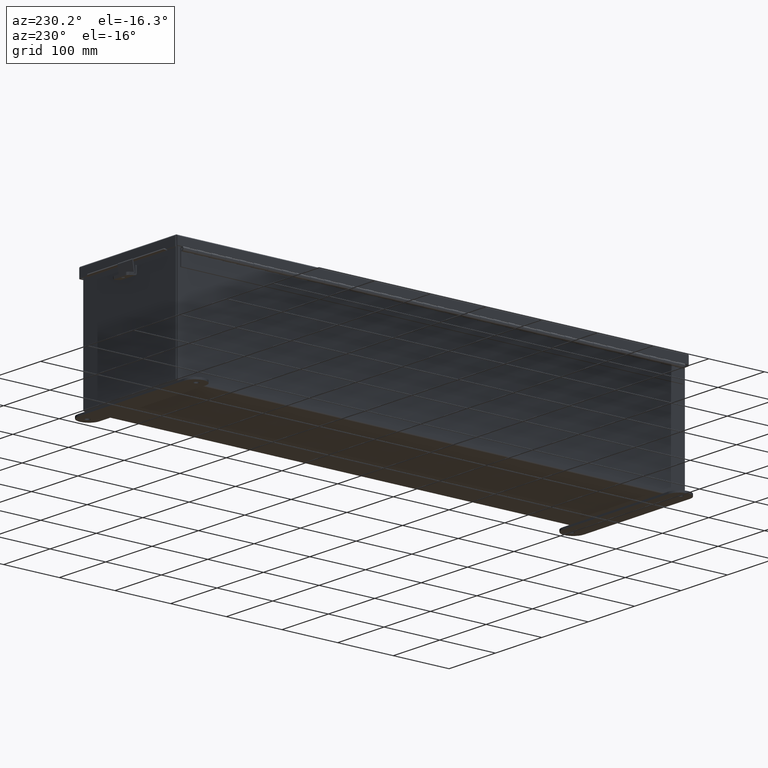
[diagram: clean part render]
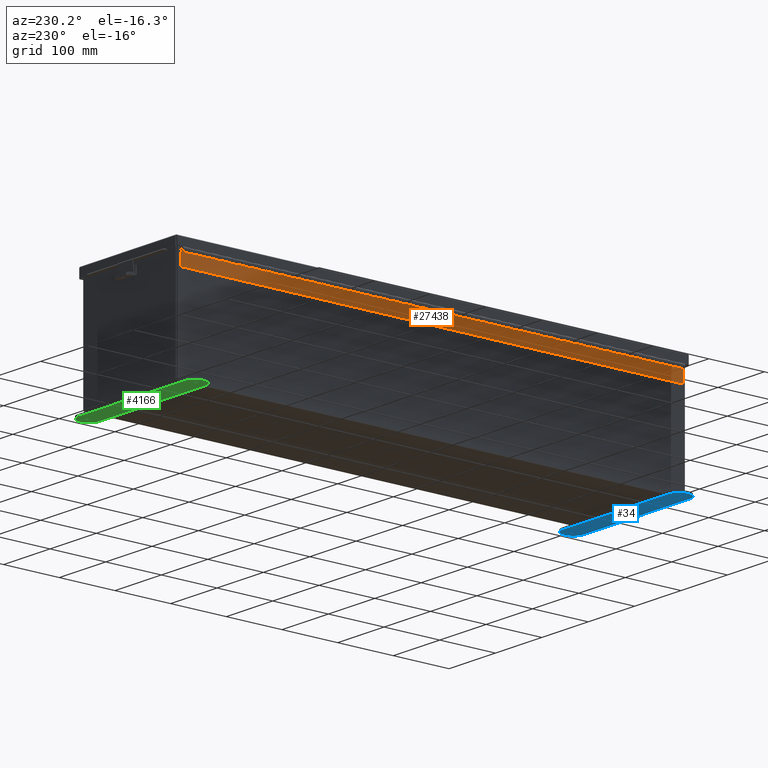
[diagram: same view with three faces highlighted in distinct colors, each labeled with its STEP entity id]
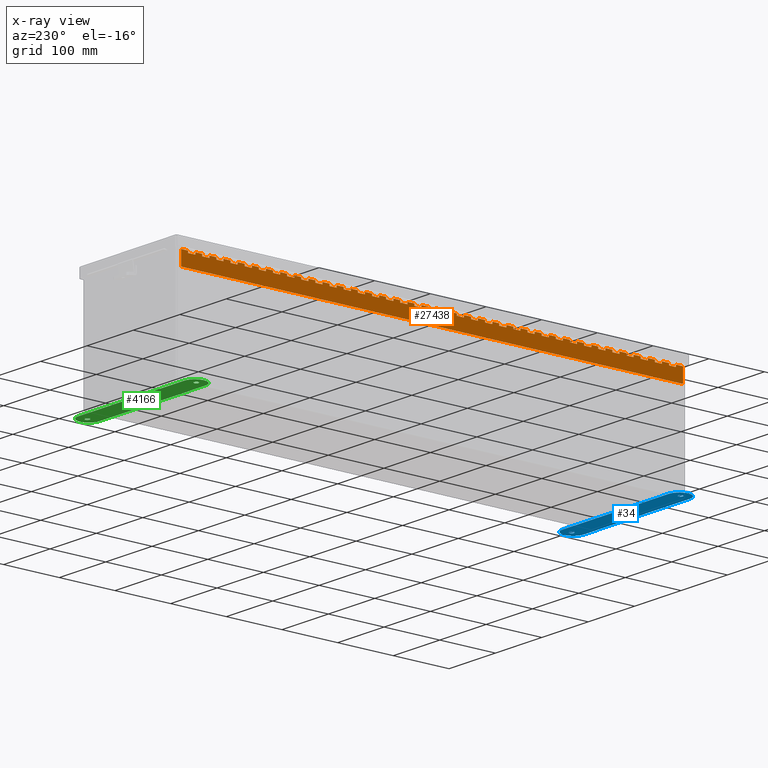
[diagram: x-ray of the same camera — body ghosted, the three highlighted faces saturated]
A machine part, auxiliary view with three faces highlighted in distinct colors.
The next image is the same camera in x-ray (body ghosted, the three faces saturated) — at least one of them is partly hidden behind the body in this view.
Their STEP definitions:

[orange] entity #27438 — the highlighted planar face has unit normal (1, -0, 0).
#19 = VERTEX_POINT ( 'NONE', #160 ) ;
#29 = CARTESIAN_POINT ( 'NONE',  ( 0.0000000000000000000, 22.49999999999999300, 8.170547571850760400E-016 ) ) ;
#31 = CARTESIAN_POINT ( 'NONE',  ( 0.2730000000000000200, -17.00000000000000000, 1.157494239345524500E-015 ) ) ;
#57 = EDGE_CURVE ( 'NONE', #15276, #26144, #9774, .T. ) ;
#82 = ORIENTED_EDGE ( 'NONE', *, *, #7891, .T. ) ;
#114 = CARTESIAN_POINT ( 'NONE',  ( 0.0000000000000000000, 17.49999999999999300, 1.157494239345524500E-015 ) ) ;
#124 = LINE ( 'NONE', #5340, #17720 ) ;
#133 = DIRECTION ( 'NONE',  ( -1.000000000000000000, 0.0000000000000000000, 0.0000000000000000000 ) ) ;
#136 = CARTESIAN_POINT ( 'NONE',  ( 0.1365000000000000100, 26.49999999999999300, -1.297218019791475500E-016 ) ) ;
#160 = CARTESIAN_POINT ( 'NONE',  ( 0.2729999999999995200, 25.99999999999999300, 6.127910678888071100E-016 ) ) ;
#166 = ORIENTED_EDGE ( 'NONE', *, *, #18518, .F. ) ;
#177 = VECTOR ( 'NONE', #24492, 39.37007874015748100 ) ;
#190 = CARTESIAN_POINT ( 'NONE',  ( 0.0000000000000000000, 8.499999999999991100, 1.770285307234331600E-015 ) ) ;
#240 = VECTOR ( 'NONE', #8212, 39.37007874015748100 ) ;
#249 = DIRECTION ( 'NONE',  ( -1.000000000000000000, 0.0000000000000000000, 0.0000000000000000000 ) ) ;
#254 = ORIENTED_EDGE ( 'NONE', *, *, #16707, .F. ) ;
#320 = LINE ( 'NONE', #21340, #11780 ) ;
#325 = CARTESIAN_POINT ( 'NONE',  ( 0.2729999999999995200, 34.99999999999999300, 0.0000000000000000000 ) ) ;
#348 = DIRECTION ( 'NONE',  ( -1.346685630679566500E-017, 1.000000000000000000, 0.0000000000000000000 ) ) ;
#391 = VECTOR ( 'NONE', #15020, 39.37007874015748100 ) ;
#401 = DIRECTION ( 'NONE',  ( -1.000000000000000000, 0.0000000000000000000, 0.0000000000000000000 ) ) ;
#409 = VECTOR ( 'NONE', #19509, 39.37007874015748100 ) ;
#452 = FACE_OUTER_BOUND ( 'NONE', #16521, .T. ) ;
#456 = LINE ( 'NONE', #29, #24141 ) ;
#564 = EDGE_CURVE ( 'NONE', #29138, #23357, #21235, .T. ) ;
#570 = VECTOR ( 'NONE', #20509, 39.37007874015748100 ) ;
#585 = DIRECTION ( 'NONE',  ( -1.346685630679566500E-017, 1.000000000000000000, 0.0000000000000000000 ) ) ;
#603 = DIRECTION ( 'NONE',  ( -1.000000000000000000, 0.0000000000000000000, 0.0000000000000000000 ) ) ;
#620 = VECTOR ( 'NONE', #21196, 39.37007874015748100 ) ;
#634 = EDGE_CURVE ( 'NONE', #16021, #5544, #19086, .T. ) ;
#647 = CARTESIAN_POINT ( 'NONE',  ( 0.1365000000000000100, -4.256342336322573700E-018, 1.673256896119361100E-015 ) ) ;
#652 = ORIENTED_EDGE ( 'NONE', *, *, #15183, .F. ) ;
#661 = VECTOR ( 'NONE', #22272, 39.37007874015748100 ) ;
#700 = LINE ( 'NONE', #12692, #23657 ) ;
#725 = VECTOR ( 'NONE', #27686, 39.37007874015748100 ) ;
#845 = DIRECTION ( 'NONE',  ( -1.346685630679566500E-017, 1.000000000000000000, 0.0000000000000000000 ) ) ;
#858 = CARTESIAN_POINT ( 'NONE',  ( 0.0000000000000000000, 21.49999999999999300, 8.851426536171658200E-016 ) ) ;
#908 = CARTESIAN_POINT ( 'NONE',  ( 0.0000000000000000000, 6.499999999999992000, 1.906461100098511000E-015 ) ) ;
#916 = DIRECTION ( 'NONE',  ( -1.000000000000000000, 0.0000000000000000000, 0.0000000000000000000 ) ) ;
#919 = DIRECTION ( 'NONE',  ( 0.0000000000000000000, 1.000000000000000000, -6.810147738116168400E-017 ) ) ;
#1027 = VERTEX_POINT ( 'NONE', #25750 ) ;
#1073 = VECTOR ( 'NONE', #11903, 39.37007874015748100 ) ;
#1076 = CARTESIAN_POINT ( 'NONE',  ( 0.0000000000000000000, 18.49999999999999300, 1.089406342913434900E-015 ) ) ;
#1083 = EDGE_CURVE ( 'NONE', #28434, #7840, #2195, .T. ) ;
#1109 = ORIENTED_EDGE ( 'NONE', *, *, #3350, .F. ) ;
#1123 = DIRECTION ( 'NONE',  ( -1.346685630679566500E-017, 1.000000000000000000, 0.0000000000000000000 ) ) ;
#1209 = ORIENTED_EDGE ( 'NONE', *, *, #18052, .F. ) ;
#1296 = CARTESIAN_POINT ( 'NONE',  ( 0.2729999999999995200, 18.99999999999999300, 1.089406342913434900E-015 ) ) ;
#1308 = VECTOR ( 'NONE', #7281, 39.37007874015748100 ) ;
#1352 = VECTOR ( 'NONE', #7538, 39.37007874015748100 ) ;
#1356 = EDGE_CURVE ( 'NONE', #11537, #2973, #2538, .T. ) ;
#1431 = CARTESIAN_POINT ( 'NONE',  ( 0.2729999999999995200, 19.99999999999999300, 1.021318446481345200E-015 ) ) ;
#1432 = CARTESIAN_POINT ( 'NONE',  ( 0.0000000000000000000, 25.49999999999998900, 6.127910678888071100E-016 ) ) ;
#1445 = CARTESIAN_POINT ( 'NONE',  ( 0.2730000000000000200, -11.99999999999999800, 8.170547571850760400E-016 ) ) ;
#1449 = CARTESIAN_POINT ( 'NONE',  ( 0.2730000000000000200, -34.00000000000000000, 2.314988478691049100E-015 ) ) ;
#1479 = DIRECTION ( 'NONE',  ( -1.000000000000000000, 0.0000000000000000000, 0.0000000000000000000 ) ) ;
#1496 = ORIENTED_EDGE ( 'NONE', *, *, #16014, .F. ) ;
#1708 = CARTESIAN_POINT ( 'NONE',  ( 0.1365000000000000100, 26.99999999999998900, -1.654829931720035700E-016 ) ) ;
#1717 = ORIENTED_EDGE ( 'NONE', *, *, #18877, .F. ) ;
#1809 = CARTESIAN_POINT ( 'NONE',  ( 0.2729999999999995200, 10.99999999999999500, 1.634109514370152100E-015 ) ) ;
#1825 = VECTOR ( 'NONE', #29113, 39.37007874015748100 ) ;
#1892 = DIRECTION ( 'NONE',  ( -1.000000000000000000, 0.0000000000000000000, 0.0000000000000000000 ) ) ;
#1903 = EDGE_CURVE ( 'NONE', #8632, #11142, #17926, .T. ) ;
#1910 = CARTESIAN_POINT ( 'NONE',  ( 0.1365000000000000100, -4.256342336322573700E-018, 1.673256896119361100E-015 ) ) ;
#1952 = EDGE_CURVE ( 'NONE', #18533, #3964, #11088, .T. ) ;
#1956 = LINE ( 'NONE', #27168, #20225 ) ;
#1970 = VERTEX_POINT ( 'NONE', #26415 ) ;
#1977 = CARTESIAN_POINT ( 'NONE',  ( 0.1365000000000000100, 15.99999999999999300, 5.836332580207747900E-016 ) ) ;
#2008 = VERTEX_POINT ( 'NONE', #19657 ) ;
#2034 = CARTESIAN_POINT ( 'NONE',  ( 0.0000000000000000000, 7.999999999999993800, 1.838373203666421300E-015 ) ) ;
#2125 = LINE ( 'NONE', #20574, #13582 ) ;
#2139 = EDGE_CURVE ( 'NONE', #22355, #14800, #700, .T. ) ;
#2195 = LINE ( 'NONE', #23623, #7548 ) ;
#2215 = EDGE_CURVE ( 'NONE', #16877, #19660, #22921, .T. ) ;
#2256 = CARTESIAN_POINT ( 'NONE',  ( 0.1365000000000000100, 2.499999999999991600, 1.504387712391004900E-015 ) ) ;
#2352 = VECTOR ( 'NONE', #21351, 39.37007874015748100 ) ;
#2399 = EDGE_CURVE ( 'NONE', #9872, #12043, #29430, .T. ) ;
#2465 = ORIENTED_EDGE ( 'NONE', *, *, #10026, .T. ) ;
#2467 = CARTESIAN_POINT ( 'NONE',  ( 0.2729999999999995200, 15.49999999999999100, 1.293670032209703900E-015 ) ) ;
#2468 = CARTESIAN_POINT ( 'NONE',  ( 0.1365000000000000100, 18.99999999999999300, 3.793288258772897100E-016 ) ) ;
#2474 = EDGE_CURVE ( 'NONE', #2917, #2839, #21180, .T. ) ;
#2476 = VECTOR ( 'NONE', #7572, 39.37007874015748100 ) ;
#2489 = CARTESIAN_POINT ( 'NONE',  ( 0.2729999999999995200, 13.99999999999999300, 1.429845825073883200E-015 ) ) ;
#2512 = VECTOR ( 'NONE', #14970, 39.37007874015748100 ) ;
#2514 = ORIENTED_EDGE ( 'NONE', *, *, #21431, .T. ) ;
#2538 = LINE ( 'NONE', #8516, #1825 ) ;
#2552 = ORIENTED_EDGE ( 'NONE', *, *, #564, .T. ) ;
#2566 = VERTEX_POINT ( 'NONE', #19098 ) ;
#2614 = EDGE_CURVE ( 'NONE', #24435, #26504, #10750, .T. ) ;
#2618 = DIRECTION ( 'NONE',  ( -1.000000000000000000, 0.0000000000000000000, 0.0000000000000000000 ) ) ;
#2656 = CARTESIAN_POINT ( 'NONE',  ( 0.2730000000000000200, -20.00000000000000000, 1.361757928641793600E-015 ) ) ;
#2662 = ORIENTED_EDGE ( 'NONE', *, *, #26883, .F. ) ;
#2669 = VERTEX_POINT ( 'NONE', #24006 ) ;
#2689 = EDGE_CURVE ( 'NONE', #4466, #13014, #15437, .T. ) ;
#2691 = ORIENTED_EDGE ( 'NONE', *, *, #2399, .T. ) ;
#2745 = ORIENTED_EDGE ( 'NONE', *, *, #16457, .F. ) ;
#2755 = VECTOR ( 'NONE', #6979, 39.37007874015748100 ) ;
#2794 = CARTESIAN_POINT ( 'NONE',  ( 0.2729999999999995200, 16.99999999999999300, 1.225582135777614200E-015 ) ) ;
#2815 = CARTESIAN_POINT ( 'NONE',  ( 0.2729999999999995200, 7.499999999999992000, 1.838373203666421300E-015 ) ) ;
#2819 = LINE ( 'NONE', #1910, #8867 ) ;
#2839 = VERTEX_POINT ( 'NONE', #136 ) ;
#2869 = VERTEX_POINT ( 'NONE', #11644 ) ;
#2903 = CARTESIAN_POINT ( 'NONE',  ( 0.2729999999999995200, 29.49999999999998900, 3.404394821604483900E-016 ) ) ;
#2917 = VERTEX_POINT ( 'NONE', #18789 ) ;
#2922 = CARTESIAN_POINT ( 'NONE',  ( 1.136500000000000100, 35.50000000000000000, 0.0000000000000000000 ) ) ;
#2947 = VERTEX_POINT ( 'NONE', #16575 ) ;
#2973 = VERTEX_POINT ( 'NONE', #25813 ) ;
#3022 = ORIENTED_EDGE ( 'NONE', *, *, #3914, .F. ) ;
#3033 = CARTESIAN_POINT ( 'NONE',  ( 0.2730000000000000200, -32.00000000000000000, 2.178812685826869700E-015 ) ) ;
#3068 = CARTESIAN_POINT ( 'NONE',  ( 0.0000000000000000000, 32.49999999999999300, 1.361757928641793600E-016 ) ) ;
#3109 = VECTOR ( 'NONE', #919, 39.37007874015748100 ) ;
#3141 = CARTESIAN_POINT ( 'NONE',  ( 0.1365000000000000100, -4.256342336322573700E-018, 1.673256896119361100E-015 ) ) ;
#3214 = ORIENTED_EDGE ( 'NONE', *, *, #14520, .F. ) ;
#3221 = CARTESIAN_POINT ( 'NONE',  ( 0.2729999999999995200, 8.999999999999992900, 1.770285307234331600E-015 ) ) ;
#3230 = CARTESIAN_POINT ( 'NONE',  ( 0.2730000000000000200, -21.00000000000000000, 1.429845825073883200E-015 ) ) ;
#3239 = CARTESIAN_POINT ( 'NONE',  ( 0.0000000000000000000, 0.4999999999999930100, 2.314988478691049100E-015 ) ) ;
#3265 = ORIENTED_EDGE ( 'NONE', *, *, #11995, .F. ) ;
#3274 = CARTESIAN_POINT ( 'NONE',  ( 0.1365000000000000100, 14.49999999999998900, 6.873329552059286200E-016 ) ) ;
#3293 = VECTOR ( 'NONE', #12851, 39.37007874015748100 ) ;
#3338 = ORIENTED_EDGE ( 'NONE', *, *, #11335, .F. ) ;
#3350 = EDGE_CURVE ( 'NONE', #6705, #22805, #9632, .T. ) ;
#3398 = ORIENTED_EDGE ( 'NONE', *, *, #29005, .T. ) ;
#3418 = CARTESIAN_POINT ( 'NONE',  ( 0.1365000000000000100, 9.999999999999991100, 9.922421223077448700E-016 ) ) ;
#3422 = VECTOR ( 'NONE', #29321, 39.37007874015748100 ) ;
#3465 = VECTOR ( 'NONE', #15774, 39.37007874015748100 ) ;
#3470 = VECTOR ( 'NONE', #24755, 39.37007874015748100 ) ;
#3479 = DIRECTION ( 'NONE',  ( -1.000000000000000000, 0.0000000000000000000, 0.0000000000000000000 ) ) ;
#3499 = CARTESIAN_POINT ( 'NONE',  ( 0.2729999999999995200, 8.499999999999991100, 1.770285307234331600E-015 ) ) ;
#3521 = VECTOR ( 'NONE', #249, 39.37007874015748100 ) ;
#3528 = EDGE_CURVE ( 'NONE', #27771, #24353, #29006, .T. ) ;
#3541 = CARTESIAN_POINT ( 'NONE',  ( 0.2729999999999995200, 1.999999999999994000, 2.246900582258959400E-015 ) ) ;
#3559 = ORIENTED_EDGE ( 'NONE', *, *, #5492, .F. ) ;
#3573 = CARTESIAN_POINT ( 'NONE',  ( 0.2729999999999995200, 12.49999999999999100, 1.497933721505972900E-015 ) ) ;
#3608 = EDGE_CURVE ( 'NONE', #9872, #29681, #21486, .T. ) ;
#3612 = LINE ( 'NONE', #27649, #15057 ) ;
#3664 = CARTESIAN_POINT ( 'NONE',  ( 0.1365000000000000100, -4.256342336322573700E-018, 1.673256896119361100E-015 ) ) ;
#3714 = VERTEX_POINT ( 'NONE', #5827 ) ;
#3745 = ORIENTED_EDGE ( 'NONE', *, *, #9148, .F. ) ;
#3765 = LINE ( 'NONE', #25730, #14495 ) ;
#3776 = DIRECTION ( 'NONE',  ( -1.000000000000000000, 0.0000000000000000000, 0.0000000000000000000 ) ) ;
#3810 = ORIENTED_EDGE ( 'NONE', *, *, #5392, .F. ) ;
#3816 = LINE ( 'NONE', #28749, #15980 ) ;
#3896 = EDGE_CURVE ( 'NONE', #9094, #21552, #14997, .T. ) ;
#3912 = ORIENTED_EDGE ( 'NONE', *, *, #10554, .T. ) ;
#3914 = EDGE_CURVE ( 'NONE', #28655, #21391, #2819, .T. ) ;
#3964 = VERTEX_POINT ( 'NONE', #27260 ) ;
#4016 = LINE ( 'NONE', #10374, #15471 ) ;
#4036 = CARTESIAN_POINT ( 'NONE',  ( 0.2730000000000000200, -19.00000000000000000, 1.293670032209703900E-015 ) ) ;
#4047 = LINE ( 'NONE', #27340, #9359 ) ;
#4056 = LINE ( 'NONE', #8368, #27708 ) ;
#4083 = VECTOR ( 'NONE', #29319, 39.37007874015748100 ) ;
#4147 = VERTEX_POINT ( 'NONE', #13996 ) ;
#4238 = VECTOR ( 'NONE', #27837, 39.37007874015748100 ) ;
#4247 = CARTESIAN_POINT ( 'NONE',  ( 0.0000000000000000000, 2.499999999999991600, 2.178812685826869700E-015 ) ) ;
#4290 = EDGE_CURVE ( 'NONE', #27280, #14893, #15701, .T. ) ;
#4299 = EDGE_CURVE ( 'NONE', #29614, #20804, #9576, .T. ) ;
#4306 = VECTOR ( 'NONE', #15549, 39.37007874015748100 ) ;
#4318 = VERTEX_POINT ( 'NONE', #21006 ) ;
#4336 = DIRECTION ( 'NONE',  ( -1.000000000000000000, 0.0000000000000000000, 0.0000000000000000000 ) ) ;
#4339 = EDGE_CURVE ( 'NONE', #16229, #7207, #8841, .T. ) ;
#4341 = EDGE_CURVE ( 'NONE', #11561, #5209, #20336, .T. ) ;
#4379 = LINE ( 'NONE', #4247, #22652 ) ;
#4402 = LINE ( 'NONE', #28443, #26651 ) ;
#4429 = EDGE_CURVE ( 'NONE', #12730, #20844, #25021, .T. ) ;
#4433 = LINE ( 'NONE', #10922, #21277 ) ;
#4452 = ORIENTED_EDGE ( 'NONE', *, *, #8162, .F. ) ;
#4466 = VERTEX_POINT ( 'NONE', #12366 ) ;
#4588 = ORIENTED_EDGE ( 'NONE', *, *, #21145, .F. ) ;
#4627 = VECTOR ( 'NONE', #10878, 39.37007874015748100 ) ;
#4647 = VECTOR ( 'NONE', #21991, 39.37007874015748100 ) ;
#4706 = VECTOR ( 'NONE', #5653, 39.37007874015748100 ) ;
#4733 = CARTESIAN_POINT ( 'NONE',  ( 0.1365000000000000100, 3.499999999999990700, 1.436299815958915000E-015 ) ) ;
#4735 = VECTOR ( 'NONE', #16613, 39.37007874015748100 ) ;
#4784 = LINE ( 'NONE', #24726, #4083 ) ;
#4788 = DIRECTION ( 'NONE',  ( -1.000000000000000000, 0.0000000000000000000, 0.0000000000000000000 ) ) ;
#4796 = VERTEX_POINT ( 'NONE', #25087 ) ;
#4804 = VECTOR ( 'NONE', #12839, 39.37007874015748100 ) ;
#4809 = DIRECTION ( 'NONE',  ( -1.346685630679566500E-017, 1.000000000000000000, 0.0000000000000000000 ) ) ;
#4887 = CARTESIAN_POINT ( 'NONE',  ( 0.2730000000000000200, -11.00000000000000000, 7.489668607529864600E-016 ) ) ;
#4906 = VERTEX_POINT ( 'NONE', #11718 ) ;
#4926 = CARTESIAN_POINT ( 'NONE',  ( 0.0000000000000000000, 24.99999999999999300, 6.808789643208967800E-016 ) ) ;
#4936 = LINE ( 'NONE', #23492, #22501 ) ;
#4974 = DIRECTION ( 'NONE',  ( -1.000000000000000000, 0.0000000000000000000, 0.0000000000000000000 ) ) ;
#5009 = VECTOR ( 'NONE', #24723, 39.37007874015748100 ) ;
#5059 = VERTEX_POINT ( 'NONE', #19254 ) ;
#5077 = CARTESIAN_POINT ( 'NONE',  ( 0.1365000000000000100, -4.256342336322573700E-018, 1.673256896119361100E-015 ) ) ;
#5089 = DIRECTION ( 'NONE',  ( -1.000000000000000000, 0.0000000000000000000, -0.0000000000000000000 ) ) ;
#5097 = CARTESIAN_POINT ( 'NONE',  ( 0.1365000000000000100, 0.9999999999999947800, 1.605155418738199900E-015 ) ) ;
#5155 = LINE ( 'NONE', #908, #28821 ) ;
#5156 = VECTOR ( 'NONE', #4336, 39.37007874015748100 ) ;
#5162 = CARTESIAN_POINT ( 'NONE',  ( 0.0000000000000000000, 24.49999999999998900, 6.808789643208967800E-016 ) ) ;
#5171 = VERTEX_POINT ( 'NONE', #10408 ) ;
#5209 = VERTEX_POINT ( 'NONE', #6016 ) ;
#5219 = DIRECTION ( 'NONE',  ( -1.346685630679566500E-017, 1.000000000000000000, 0.0000000000000000000 ) ) ;
#5309 = CARTESIAN_POINT ( 'NONE',  ( 0.2730000000000000200, -28.99999999999999600, 1.974548996530600700E-015 ) ) ;
#5310 = ORIENTED_EDGE ( 'NONE', *, *, #28658, .F. ) ;
#5329 = VERTEX_POINT ( 'NONE', #20718 ) ;
#5340 = CARTESIAN_POINT ( 'NONE',  ( 0.0000000000000000000, 20.49999999999998900, 9.532305500492555000E-016 ) ) ;
#5367 = LINE ( 'NONE', #14415, #2476 ) ;
#5392 = EDGE_CURVE ( 'NONE', #24353, #4466, #22799, .T. ) ;
#5488 = LINE ( 'NONE', #12212, #6878 ) ;
#5492 = EDGE_CURVE ( 'NONE', #22020, #6583, #26772, .T. ) ;
#5520 = LINE ( 'NONE', #6042, #4804 ) ;
#5544 = VERTEX_POINT ( 'NONE', #7679 ) ;
#5557 = VECTOR ( 'NONE', #15970, 39.37007874015748100 ) ;
#5566 = VERTEX_POINT ( 'NONE', #17028 ) ;
#5653 = DIRECTION ( 'NONE',  ( -1.000000000000000000, 0.0000000000000000000, 0.0000000000000000000 ) ) ;
#5655 = ORIENTED_EDGE ( 'NONE', *, *, #7244, .T. ) ;
#5722 = LINE ( 'NONE', #10963, #5009 ) ;
#5723 = DIRECTION ( 'NONE',  ( 0.0000000000000000000, 1.000000000000000000, -6.810147738116168400E-017 ) ) ;
#5783 = LINE ( 'NONE', #12805, #17972 ) ;
#5793 = VERTEX_POINT ( 'NONE', #2794 ) ;
#5827 = CARTESIAN_POINT ( 'NONE',  ( 0.1365000000000000100, 10.99999999999999500, 9.241406449265830300E-016 ) ) ;
#5931 = CARTESIAN_POINT ( 'NONE',  ( 1.136500000000000100, 0.0000000000000000000, 0.0000000000000000000 ) ) ;
#6009 = CARTESIAN_POINT ( 'NONE',  ( 0.0000000000000000000, 10.49999999999999300, 1.634109514370152100E-015 ) ) ;
#6016 = CARTESIAN_POINT ( 'NONE',  ( 0.1365000000000000100, 32.99999999999999300, -5.740918574589741900E-016 ) ) ;
#6032 = CARTESIAN_POINT ( 'NONE',  ( 0.1365000000000000100, 23.49999999999999300, 7.454188731712149900E-017 ) ) ;
#6034 = EDGE_CURVE ( 'NONE', #11341, #18420, #7676, .T. ) ;
#6042 = CARTESIAN_POINT ( 'NONE',  ( 0.0000000000000000000, 34.99999999999999300, 0.0000000000000000000 ) ) ;
#6078 = DIRECTION ( 'NONE',  ( -1.000000000000000000, 0.0000000000000000000, 0.0000000000000000000 ) ) ;
#6196 = CARTESIAN_POINT ( 'NONE',  ( 0.2729999999999995200, 26.99999999999998900, 5.447031714567174300E-016 ) ) ;
#6215 = EDGE_CURVE ( 'NONE', #15276, #21705, #15601, .T. ) ;
#6223 = VERTEX_POINT ( 'NONE', #27144 ) ;
#6234 = ORIENTED_EDGE ( 'NONE', *, *, #4429, .F. ) ;
#6273 = CARTESIAN_POINT ( 'NONE',  ( 0.0000000000000000000, 6.999999999999993800, 1.906461100098511000E-015 ) ) ;
#6281 = DIRECTION ( 'NONE',  ( 0.0000000000000000000, 1.000000000000000000, -6.810147738116168400E-017 ) ) ;
#6396 = CARTESIAN_POINT ( 'NONE',  ( 0.0000000000000000000, 17.99999999999999300, 1.157494239345524500E-015 ) ) ;
#6398 = VERTEX_POINT ( 'NONE', #16292 ) ;
#6424 = VECTOR ( 'NONE', #17704, 39.37007874015748100 ) ;
#6430 = VERTEX_POINT ( 'NONE', #14172 ) ;
#6435 = LINE ( 'NONE', #12108, #17925 ) ;
#6461 = CARTESIAN_POINT ( 'NONE',  ( 0.0000000000000000000, 16.99999999999999300, 1.225582135777614200E-015 ) ) ;
#6466 = EDGE_CURVE ( 'NONE', #22721, #24572, #3765, .T. ) ;
#6467 = DIRECTION ( 'NONE',  ( 0.0000000000000000000, 1.000000000000000000, -6.810147738116168400E-017 ) ) ;
#6494 = LINE ( 'NONE', #21737, #409 ) ;
#6497 = CARTESIAN_POINT ( 'NONE',  ( 0.1365000000000000100, -4.256342336322573700E-018, 1.673256896119361100E-015 ) ) ;
#6583 = VERTEX_POINT ( 'NONE', #14654 ) ;
#6665 = ORIENTED_EDGE ( 'NONE', *, *, #4290, .F. ) ;
#6683 = EDGE_CURVE ( 'NONE', #11537, #2566, #27764, .T. ) ;
#6705 = VERTEX_POINT ( 'NONE', #17468 ) ;
#6714 = VERTEX_POINT ( 'NONE', #19764 ) ;
#6783 = ORIENTED_EDGE ( 'NONE', *, *, #23612, .F. ) ;
#6788 = LINE ( 'NONE', #11510, #725 ) ;
#6823 = ORIENTED_EDGE ( 'NONE', *, *, #9496, .F. ) ;
#6840 = EDGE_CURVE ( 'NONE', #20793, #9094, #29526, .T. ) ;
#6853 = LINE ( 'NONE', #22335, #19099 ) ;
#6878 = VECTOR ( 'NONE', #28288, 39.37007874015748100 ) ;
#6882 = EDGE_CURVE ( 'NONE', #16877, #6398, #28121, .T. ) ;
#6933 = DIRECTION ( 'NONE',  ( -1.346685630679566500E-017, 1.000000000000000000, 0.0000000000000000000 ) ) ;
#6968 = VERTEX_POINT ( 'NONE', #11616 ) ;
#6979 = DIRECTION ( 'NONE',  ( -1.000000000000000000, 0.0000000000000000000, 0.0000000000000000000 ) ) ;
#6997 = CARTESIAN_POINT ( 'NONE',  ( 0.0000000000000000000, 30.99999999999999300, 2.723515857283587100E-016 ) ) ;
#7020 = LINE ( 'NONE', #12846, #240 ) ;
#7026 = DIRECTION ( 'NONE',  ( 0.0000000000000000000, 1.000000000000000000, -6.810147738116168400E-017 ) ) ;
#7038 = DIRECTION ( 'NONE',  ( -1.346685630679566500E-017, 1.000000000000000000, 0.0000000000000000000 ) ) ;
#7048 = DIRECTION ( 'NONE',  ( -1.000000000000000000, 0.0000000000000000000, 0.0000000000000000000 ) ) ;
#7094 = EDGE_CURVE ( 'NONE', #15973, #18729, #4784, .T. ) ;
#7118 = LINE ( 'NONE', #6273, #6424 ) ;
#7124 = ORIENTED_EDGE ( 'NONE', *, *, #10562, .T. ) ;
#7136 = CARTESIAN_POINT ( 'NONE',  ( 0.1365000000000000100, 23.99999999999999300, 3.882143897148137200E-017 ) ) ;
#7151 = VERTEX_POINT ( 'NONE', #1977 ) ;
#7175 = DIRECTION ( 'NONE',  ( -1.000000000000000000, 0.0000000000000000000, 0.0000000000000000000 ) ) ;
#7207 = VERTEX_POINT ( 'NONE', #2256 ) ;
#7222 = ORIENTED_EDGE ( 'NONE', *, *, #19303, .F. ) ;
#7244 = EDGE_CURVE ( 'NONE', #4318, #24572, #456, .T. ) ;
#7245 = ORIENTED_EDGE ( 'NONE', *, *, #1083, .F. ) ;
#7281 = DIRECTION ( 'NONE',  ( -1.346685630679566500E-017, 1.000000000000000000, 0.0000000000000000000 ) ) ;
#7317 = CARTESIAN_POINT ( 'NONE',  ( 0.2729999999999995200, 28.49999999999999300, 4.085273785925380200E-016 ) ) ;
#7372 = LINE ( 'NONE', #14223, #1308 ) ;
#7421 = DIRECTION ( 'NONE',  ( -1.000000000000000000, 0.0000000000000000000, 0.0000000000000000000 ) ) ;
#7461 = CARTESIAN_POINT ( 'NONE',  ( 0.2730000000000000200, -8.000000000000000000, 5.447031714567174300E-016 ) ) ;
#7464 = EDGE_CURVE ( 'NONE', #10490, #6968, #25191, .T. ) ;
#7506 = DIRECTION ( 'NONE',  ( -1.000000000000000000, 0.0000000000000000000, 0.0000000000000000000 ) ) ;
#7509 = DIRECTION ( 'NONE',  ( -1.000000000000000000, 0.0000000000000000000, 0.0000000000000000000 ) ) ;
#7538 = DIRECTION ( 'NONE',  ( 0.0000000000000000000, 1.000000000000000000, -6.810147738116168400E-017 ) ) ;
#7540 = ORIENTED_EDGE ( 'NONE', *, *, #19587, .T. ) ;
#7548 = VECTOR ( 'NONE', #25944, 39.37007874015748100 ) ;
#7572 = DIRECTION ( 'NONE',  ( -1.000000000000000000, 0.0000000000000000000, 0.0000000000000000000 ) ) ;
#7669 = CARTESIAN_POINT ( 'NONE',  ( 0.2729999999999995200, 5.999999999999994700, 1.974548996530600700E-015 ) ) ;
#7676 = LINE ( 'NONE', #17310, #19184 ) ;
#7679 = CARTESIAN_POINT ( 'NONE',  ( 0.2729999999999995200, 14.99999999999999100, 1.361757928641793600E-015 ) ) ;
#7711 = LINE ( 'NONE', #8253, #24621 ) ;
#7721 = EDGE_CURVE ( 'NONE', #27771, #7207, #4379, .T. ) ;
#7727 = ORIENTED_EDGE ( 'NONE', *, *, #27566, .F. ) ;
#7791 = DIRECTION ( 'NONE',  ( -1.000000000000000000, 0.0000000000000000000, 0.0000000000000000000 ) ) ;
#7834 = ORIENTED_EDGE ( 'NONE', *, *, #10330, .F. ) ;
#7835 = DIRECTION ( 'NONE',  ( -1.000000000000000000, 0.0000000000000000000, 0.0000000000000000000 ) ) ;
#7840 = VERTEX_POINT ( 'NONE', #27482 ) ;
#7850 = VECTOR ( 'NONE', #22520, 39.37007874015748100 ) ;
#7883 = DIRECTION ( 'NONE',  ( -1.346685630679566500E-017, 1.000000000000000000, 0.0000000000000000000 ) ) ;
#7891 = EDGE_CURVE ( 'NONE', #25488, #2839, #12225, .T. ) ;
#7905 = ORIENTED_EDGE ( 'NONE', *, *, #21289, .F. ) ;
#7946 = LINE ( 'NONE', #5309, #18746 ) ;
#8000 = VECTOR ( 'NONE', #1892, 39.37007874015748100 ) ;
#8005 = LINE ( 'NONE', #1445, #20233 ) ;
#8049 = VERTEX_POINT ( 'NONE', #3221 ) ;
#8057 = DIRECTION ( 'NONE',  ( -1.000000000000000000, 0.0000000000000000000, 0.0000000000000000000 ) ) ;
#8135 = CARTESIAN_POINT ( 'NONE',  ( 0.1365000000000000100, -4.256342336322573700E-018, 1.673256896119361100E-015 ) ) ;
#8137 = VECTOR ( 'NONE', #14484, 39.37007874015748100 ) ;
#8152 = CARTESIAN_POINT ( 'NONE',  ( 0.1365000000000000100, 27.99999999999999300, -2.335844705531656100E-016 ) ) ;
#8162 = EDGE_CURVE ( 'NONE', #9431, #22020, #24081, .T. ) ;
#8185 = DIRECTION ( 'NONE',  ( -3.847673230513047500E-018, 1.000000000000000000, 0.0000000000000000000 ) ) ;
#8194 = EDGE_CURVE ( 'NONE', #10179, #15909, #5783, .T. ) ;
#8198 = DIRECTION ( 'NONE',  ( -1.000000000000000000, 0.0000000000000000000, 0.0000000000000000000 ) ) ;
#8212 = DIRECTION ( 'NONE',  ( -1.346685630679566500E-017, 1.000000000000000000, 0.0000000000000000000 ) ) ;
#8228 = ORIENTED_EDGE ( 'NONE', *, *, #19011, .F. ) ;
#8253 = CARTESIAN_POINT ( 'NONE',  ( 0.0000000000000000000, 35.50000000000000000, 0.0000000000000000000 ) ) ;
#8267 = ORIENTED_EDGE ( 'NONE', *, *, #13840, .T. ) ;
#8269 = VECTOR ( 'NONE', #18620, 39.37007874015748100 ) ;
#8285 = EDGE_CURVE ( 'NONE', #29138, #17243, #4056, .T. ) ;
#8307 = LINE ( 'NONE', #16357, #13712 ) ;
#8319 = EDGE_CURVE ( 'NONE', #20804, #24952, #20858, .T. ) ;
#8320 = VERTEX_POINT ( 'NONE', #29152 ) ;
#8331 = EDGE_CURVE ( 'NONE', #5566, #6714, #26282, .T. ) ;
#8368 = CARTESIAN_POINT ( 'NONE',  ( 0.2730000000000000200, -2.999999999999999600, 2.042636892962690100E-016 ) ) ;
#8420 = LINE ( 'NONE', #28675, #19236 ) ;
#8426 = ORIENTED_EDGE ( 'NONE', *, *, #15495, .F. ) ;
#8431 = CARTESIAN_POINT ( 'NONE',  ( 0.1365000000000000100, 20.99999999999999600, 2.431258711149660700E-016 ) ) ;
#8445 = ORIENTED_EDGE ( 'NONE', *, *, #12320, .F. ) ;
#8479 = CARTESIAN_POINT ( 'NONE',  ( 0.2730000000000000200, -13.00000000000000000, 8.851426536171658200E-016 ) ) ;
#8516 = CARTESIAN_POINT ( 'NONE',  ( 0.0000000000000000000, 28.49999999999999300, 4.085273785925380200E-016 ) ) ;
#8546 = DIRECTION ( 'NONE',  ( 1.000000000000000000, 0.0000000000000000000, 0.0000000000000000000 ) ) ;
#8556 = DIRECTION ( 'NONE',  ( 0.0000000000000000000, 1.000000000000000000, -6.810147738116168400E-017 ) ) ;
#8585 = EDGE_CURVE ( 'NONE', #29694, #18729, #26635, .T. ) ;
#8597 = VECTOR ( 'NONE', #19577, 39.37007874015748100 ) ;
#8632 = VERTEX_POINT ( 'NONE', #27961 ) ;
#8645 = EDGE_CURVE ( 'NONE', #25488, #22355, #24462, .T. ) ;
#8648 = VERTEX_POINT ( 'NONE', #12088 ) ;
#8662 = VECTOR ( 'NONE', #22059, 39.37007874015748100 ) ;
#8726 = LINE ( 'NONE', #29342, #8000 ) ;
#8785 = DIRECTION ( 'NONE',  ( 0.0000000000000000000, 1.000000000000000000, -6.810147738116168400E-017 ) ) ;
#8804 = ORIENTED_EDGE ( 'NONE', *, *, #10802, .F. ) ;
#8833 = CARTESIAN_POINT ( 'NONE',  ( 0.0000000000000000000, 12.99999999999999300, 1.497933721505972900E-015 ) ) ;
#8841 = LINE ( 'NONE', #5077, #14259 ) ;
#8867 = VECTOR ( 'NONE', #15640, 39.37007874015748100 ) ;
#8869 = CARTESIAN_POINT ( 'NONE',  ( 0.1365000000000000100, 1.499999999999992200, 1.572475608823094300E-015 ) ) ;
#8923 = LINE ( 'NONE', #6497, #27267 ) ;
#8933 = VERTEX_POINT ( 'NONE', #8431 ) ;
#8944 = DIRECTION ( 'NONE',  ( -1.346685630679566500E-017, 1.000000000000000000, 0.0000000000000000000 ) ) ;
#9012 = CARTESIAN_POINT ( 'NONE',  ( 0.0000000000000000000, 5.999999999999994700, 1.974548996530600700E-015 ) ) ;
#9044 = CARTESIAN_POINT ( 'NONE',  ( 0.1365000000000000100, -4.256342336322573700E-018, 1.673256896119361100E-015 ) ) ;
#9094 = VERTEX_POINT ( 'NONE', #13662 ) ;
#9148 = EDGE_CURVE ( 'NONE', #17727, #10958, #16106, .T. ) ;
#9152 = ORIENTED_EDGE ( 'NONE', *, *, #2215, .T. ) ;
#9183 = LINE ( 'NONE', #17086, #16752 ) ;
#9212 = VECTOR ( 'NONE', #3776, 39.37007874015748100 ) ;
#9284 = CARTESIAN_POINT ( 'NONE',  ( 0.1365000000000000100, 3.999999999999992500, 1.400850986594715000E-015 ) ) ;
#9303 = DIRECTION ( 'NONE',  ( -1.000000000000000000, 0.0000000000000000000, 0.0000000000000000000 ) ) ;
#9317 = VERTEX_POINT ( 'NONE', #23595 ) ;
#9338 = ORIENTED_EDGE ( 'NONE', *, *, #13667, .F. ) ;
#9359 = VECTOR ( 'NONE', #8944, 39.37007874015748100 ) ;
#9431 = VERTEX_POINT ( 'NONE', #28606 ) ;
#9432 = ORIENTED_EDGE ( 'NONE', *, *, #24371, .F. ) ;
#9496 = EDGE_CURVE ( 'NONE', #29729, #28580, #13563, .T. ) ;
#9497 = CARTESIAN_POINT ( 'NONE',  ( 0.0000000000000000000, 2.999999999999993300, 2.178812685826869700E-015 ) ) ;
#9509 = VERTEX_POINT ( 'NONE', #1431 ) ;
#9576 = LINE ( 'NONE', #16399, #14976 ) ;
#9632 = LINE ( 'NONE', #6997, #21128 ) ;
#9696 = LINE ( 'NONE', #11665, #26595 ) ;
#9710 = ORIENTED_EDGE ( 'NONE', *, *, #3528, .F. ) ;
#9715 = CARTESIAN_POINT ( 'NONE',  ( 0.1365000000000000100, 22.49999999999999300, 1.426297837492110700E-016 ) ) ;
#9772 = ORIENTED_EDGE ( 'NONE', *, *, #4339, .F. ) ;
#9774 = LINE ( 'NONE', #4887, #27370 ) ;
#9797 = VERTEX_POINT ( 'NONE', #27483 ) ;
#9800 = EDGE_CURVE ( 'NONE', #21008, #19, #17148, .T. ) ;
#9872 = VERTEX_POINT ( 'NONE', #11807 ) ;
#9917 = ORIENTED_EDGE ( 'NONE', *, *, #6882, .F. ) ;
#9941 = EDGE_CURVE ( 'NONE', #2947, #15597, #20356, .T. ) ;
#9983 = VECTOR ( 'NONE', #16945, 39.37007874015748100 ) ;
#10001 = VECTOR ( 'NONE', #6933, 39.37007874015748100 ) ;
#10026 = EDGE_CURVE ( 'NONE', #22102, #19937, #11372, .T. ) ;
#10037 = CARTESIAN_POINT ( 'NONE',  ( 0.1365000000000000100, 8.499999999999991100, 1.095860333798466800E-015 ) ) ;
#10039 = VECTOR ( 'NONE', #1479, 39.37007874015748100 ) ;
#10056 = VERTEX_POINT ( 'NONE', #26434 ) ;
#10069 = DIRECTION ( 'NONE',  ( -1.000000000000000000, 0.0000000000000000000, 0.0000000000000000000 ) ) ;
#10081 = VERTEX_POINT ( 'NONE', #26925 ) ;
#10114 = VECTOR ( 'NONE', #8556, 39.37007874015748100 ) ;
#10179 = VERTEX_POINT ( 'NONE', #13459 ) ;
#10193 = ORIENTED_EDGE ( 'NONE', *, *, #16406, .F. ) ;
#10232 = DIRECTION ( 'NONE',  ( 0.0000000000000000000, 1.000000000000000000, -6.810147738116168400E-017 ) ) ;
#10268 = ORIENTED_EDGE ( 'NONE', *, *, #26956, .T. ) ;
#10269 = VECTOR ( 'NONE', #18231, 39.37007874015748100 ) ;
#10289 = CARTESIAN_POINT ( 'NONE',  ( 0.2729999999999995200, 23.49999999999999300, 7.489668607529864600E-016 ) ) ;
#10313 = ORIENTED_EDGE ( 'NONE', *, *, #9941, .T. ) ;
#10321 = ORIENTED_EDGE ( 'NONE', *, *, #14122, .F. ) ;
#10330 = EDGE_CURVE ( 'NONE', #29681, #10179, #4936, .T. ) ;
#10357 = CARTESIAN_POINT ( 'NONE',  ( 0.2730000000000000200, -15.00000000000000000, 1.021318446481345200E-015 ) ) ;
#10374 = CARTESIAN_POINT ( 'NONE',  ( 0.1365000000000000100, -4.256342336322573700E-018, 1.673256896119361100E-015 ) ) ;
#10408 = CARTESIAN_POINT ( 'NONE',  ( 0.2729999999999995200, 10.49999999999999300, 1.634109514370152100E-015 ) ) ;
#10411 = EDGE_CURVE ( 'NONE', #17608, #21391, #26476, .T. ) ;
#10412 = LINE ( 'NONE', #13746, #21922 ) ;
#10490 = VERTEX_POINT ( 'NONE', #14946 ) ;
#10503 = VECTOR ( 'NONE', #10815, 39.37007874015748100 ) ;
#10507 = ORIENTED_EDGE ( 'NONE', *, *, #14831, .F. ) ;
#10524 = CARTESIAN_POINT ( 'NONE',  ( 0.0000000000000000000, 27.49999999999999300, 4.766152750246277500E-016 ) ) ;
#10534 = VECTOR ( 'NONE', #16843, 39.37007874015748100 ) ;
#10554 = EDGE_CURVE ( 'NONE', #15976, #13124, #18186, .T. ) ;
#10562 = EDGE_CURVE ( 'NONE', #20152, #22917, #17467, .T. ) ;
#10591 = VECTOR ( 'NONE', #7175, 39.37007874015748100 ) ;
#10681 = ORIENTED_EDGE ( 'NONE', *, *, #4299, .F. ) ;
#10703 = VECTOR ( 'NONE', #14063, 39.37007874015748100 ) ;
#10732 = VECTOR ( 'NONE', #7835, 39.37007874015748100 ) ;
#10748 = LINE ( 'NONE', #28940, #10039 ) ;
#10750 = LINE ( 'NONE', #858, #28365 ) ;
#10778 = LINE ( 'NONE', #21710, #4706 ) ;
#10799 = VERTEX_POINT ( 'NONE', #13609 ) ;
#10802 = EDGE_CURVE ( 'NONE', #15973, #22270, #16381, .T. ) ;
#10815 = DIRECTION ( 'NONE',  ( -1.346685630679566500E-017, 1.000000000000000000, 0.0000000000000000000 ) ) ;
#10878 = DIRECTION ( 'NONE',  ( -1.346685630679566500E-017, 1.000000000000000000, 0.0000000000000000000 ) ) ;
#10885 = EDGE_CURVE ( 'NONE', #20976, #21552, #20300, .T. ) ;
#10922 = CARTESIAN_POINT ( 'NONE',  ( 0.1365000000000000100, -4.256342336322573700E-018, 1.673256896119361100E-015 ) ) ;
#10950 = EDGE_CURVE ( 'NONE', #22102, #20793, #7372, .T. ) ;
#10958 = VERTEX_POINT ( 'NONE', #18848 ) ;
#10963 = CARTESIAN_POINT ( 'NONE',  ( 0.0000000000000000000, 10.99999999999999500, 1.634109514370152100E-015 ) ) ;
#10990 = DIRECTION ( 'NONE',  ( 0.0000000000000000000, 1.000000000000000000, -6.810147738116168400E-017 ) ) ;
#11020 = ORIENTED_EDGE ( 'NONE', *, *, #12669, .F. ) ;
#11031 = VECTOR ( 'NONE', #18460, 39.37007874015748100 ) ;
#11088 = LINE ( 'NONE', #19560, #28693 ) ;
#11142 = VERTEX_POINT ( 'NONE', #12488 ) ;
#11183 = CARTESIAN_POINT ( 'NONE',  ( 0.1365000000000000100, 33.49999999999999300, -6.063370770037752700E-016 ) ) ;
#11203 = EDGE_CURVE ( 'NONE', #13124, #20844, #7711, .T. ) ;
#11246 = LINE ( 'NONE', #3141, #10534 ) ;
#11317 = CARTESIAN_POINT ( 'NONE',  ( 0.2730000000000000200, -25.00000000000000000, 1.702197410802242200E-015 ) ) ;
#11335 = EDGE_CURVE ( 'NONE', #21413, #20872, #15638, .T. ) ;
#11341 = VERTEX_POINT ( 'NONE', #17980 ) ;
#11357 = VECTOR ( 'NONE', #916, 39.37007874015748100 ) ;
#11362 = DIRECTION ( 'NONE',  ( -1.000000000000000000, 0.0000000000000000000, 0.0000000000000000000 ) ) ;
#11368 = ORIENTED_EDGE ( 'NONE', *, *, #23345, .F. ) ;
#11372 = LINE ( 'NONE', #17178, #23594 ) ;
#11437 = LINE ( 'NONE', #21632, #10732 ) ;
#11510 = CARTESIAN_POINT ( 'NONE',  ( 0.2730000000000000200, -2.000000000000000000, 1.361757928641793600E-016 ) ) ;
#11537 = VERTEX_POINT ( 'NONE', #7317 ) ;
#11557 = DIRECTION ( 'NONE',  ( -1.000000000000000000, 0.0000000000000000000, 0.0000000000000000000 ) ) ;
#11561 = VERTEX_POINT ( 'NONE', #16660 ) ;
#11601 = ORIENTED_EDGE ( 'NONE', *, *, #11725, .F. ) ;
#11616 = CARTESIAN_POINT ( 'NONE',  ( 0.2729999999999995200, 20.99999999999999600, 9.532305500492555000E-016 ) ) ;
#11618 = LINE ( 'NONE', #13646, #5557 ) ;
#11644 = CARTESIAN_POINT ( 'NONE',  ( 0.2729999999999995200, 19.49999999999998900, 1.021318446481345200E-015 ) ) ;
#11660 = EDGE_CURVE ( 'NONE', #2869, #23192, #26762, .T. ) ;
#11665 = CARTESIAN_POINT ( 'NONE',  ( 0.0000000000000000000, 8.999999999999992900, 1.770285307234331600E-015 ) ) ;
#11718 = CARTESIAN_POINT ( 'NONE',  ( 0.1365000000000000100, 8.999999999999992900, 1.060343599688906500E-015 ) ) ;
#11725 = EDGE_CURVE ( 'NONE', #4147, #15344, #12368, .T. ) ;
#11753 = CARTESIAN_POINT ( 'NONE',  ( 0.2730000000000000200, -28.00000000000000000, 1.906461100098511000E-015 ) ) ;
#11757 = CARTESIAN_POINT ( 'NONE',  ( 0.2730000000000000200, -7.000000000000000000, 4.766152750246277500E-016 ) ) ;
#11780 = VECTOR ( 'NONE', #23638, 39.37007874015748100 ) ;
#11804 = VECTOR ( 'NONE', #1123, 39.37007874015748100 ) ;
#11807 = CARTESIAN_POINT ( 'NONE',  ( 0.2729999999999995200, 13.49999999999999100, 1.429845825073883200E-015 ) ) ;
#11843 = LINE ( 'NONE', #9012, #28732 ) ;
#11847 = VECTOR ( 'NONE', #6281, 39.37007874015748100 ) ;
#11871 = CARTESIAN_POINT ( 'NONE',  ( 1.136499999999999800, 35.50000000000000000, 0.0000000000000000000 ) ) ;
#11882 = ORIENTED_EDGE ( 'NONE', *, *, #19517, .F. ) ;
#11903 = DIRECTION ( 'NONE',  ( 0.0000000000000000000, 1.000000000000000000, -6.810147738116168400E-017 ) ) ;
#11967 = DIRECTION ( 'NONE',  ( -1.000000000000000000, 0.0000000000000000000, 0.0000000000000000000 ) ) ;
#11988 = ORIENTED_EDGE ( 'NONE', *, *, #23451, .T. ) ;
#11995 = EDGE_CURVE ( 'NONE', #1970, #2008, #29573, .T. ) ;
#12043 = VERTEX_POINT ( 'NONE', #18861 ) ;
#12064 = EDGE_CURVE ( 'NONE', #20976, #8049, #15223, .T. ) ;
#12068 = ORIENTED_EDGE ( 'NONE', *, *, #12287, .T. ) ;
#12088 = CARTESIAN_POINT ( 'NONE',  ( 0.1365000000000000100, 25.49999999999998900, -6.163390554705785700E-017 ) ) ;
#12108 = CARTESIAN_POINT ( 'NONE',  ( 0.0000000000000000000, 11.99999999999999500, 1.566021617938062600E-015 ) ) ;
#12212 = CARTESIAN_POINT ( 'NONE',  ( 0.0000000000000000000, 15.49999999999999100, 1.293670032209703900E-015 ) ) ;
#12225 = LINE ( 'NONE', #16355, #25895 ) ;
#12233 = VECTOR ( 'NONE', #585, 39.37007874015748100 ) ;
#12258 = LINE ( 'NONE', #8135, #29126 ) ;
#12287 = EDGE_CURVE ( 'NONE', #8632, #6583, #20945, .T. ) ;
#12320 = EDGE_CURVE ( 'NONE', #22945, #7151, #8726, .T. ) ;
#12336 = CARTESIAN_POINT ( 'NONE',  ( 0.1365000000000000100, 21.49999999999999300, 2.107176801813008700E-016 ) ) ;
#12351 = EDGE_CURVE ( 'NONE', #6223, #29022, #1956, .T. ) ;
#12363 = DIRECTION ( 'NONE',  ( -1.000000000000000000, 0.0000000000000000000, 0.0000000000000000000 ) ) ;
#12366 = CARTESIAN_POINT ( 'NONE',  ( 0.1365000000000000100, 2.999999999999993300, 1.468952463975876800E-015 ) ) ;
#12368 = LINE ( 'NONE', #13035, #177 ) ;
#12374 = VERTEX_POINT ( 'NONE', #11183 ) ;
#12488 = CARTESIAN_POINT ( 'NONE',  ( 0.2729999999999995200, 4.999999999999991100, 2.042636892962690400E-015 ) ) ;
#12491 = VERTEX_POINT ( 'NONE', #2468 ) ;
#12492 = DIRECTION ( 'NONE',  ( -1.346685630679566500E-017, 1.000000000000000000, 0.0000000000000000000 ) ) ;
#12530 = LINE ( 'NONE', #12622, #24756 ) ;
#12622 = CARTESIAN_POINT ( 'NONE',  ( 0.1365000000000000100, -4.256342336322573700E-018, 1.673256896119361100E-015 ) ) ;
#12658 = CARTESIAN_POINT ( 'NONE',  ( 0.1365000000000000100, -4.256342336322573700E-018, 1.673256896119361100E-015 ) ) ;
#12669 = EDGE_CURVE ( 'NONE', #21385, #12730, #5520, .T. ) ;
#12679 = ORIENTED_EDGE ( 'NONE', *, *, #21384, .F. ) ;
#12688 = DIRECTION ( 'NONE',  ( 0.0000000000000000000, 1.000000000000000000, -6.810147738116168400E-017 ) ) ;
#12692 = CARTESIAN_POINT ( 'NONE',  ( 0.0000000000000000000, 26.99999999999998900, 5.447031714567174300E-016 ) ) ;
#12716 = VECTOR ( 'NONE', #20589, 39.37007874015748100 ) ;
#12730 = VERTEX_POINT ( 'NONE', #13139 ) ;
#12731 = DIRECTION ( 'NONE',  ( -1.000000000000000000, 0.0000000000000000000, 0.0000000000000000000 ) ) ;
#12786 = ORIENTED_EDGE ( 'NONE', *, *, #17549, .F. ) ;
#12795 = ORIENTED_EDGE ( 'NONE', *, *, #15795, .F. ) ;
#12799 = LINE ( 'NONE', #647, #620 ) ;
#12805 = CARTESIAN_POINT ( 'NONE',  ( 0.1365000000000000100, -4.256342336322573700E-018, 1.673256896119361100E-015 ) ) ;
#12821 = DIRECTION ( 'NONE',  ( -1.000000000000000000, 0.0000000000000000000, 0.0000000000000000000 ) ) ;
#12839 = DIRECTION ( 'NONE',  ( -1.000000000000000000, 0.0000000000000000000, 0.0000000000000000000 ) ) ;
#12846 = CARTESIAN_POINT ( 'NONE',  ( 0.2730000000000000200, 3.676451771755217300E-018, 0.0000000000000000000 ) ) ;
#12851 = DIRECTION ( 'NONE',  ( -1.346685630679566500E-017, 1.000000000000000000, 0.0000000000000000000 ) ) ;
#12953 = ORIENTED_EDGE ( 'NONE', *, *, #26207, .T. ) ;
#12959 = VECTOR ( 'NONE', #27921, 39.37007874015748100 ) ;
#12960 = VECTOR ( 'NONE', #4809, 39.37007874015748100 ) ;
#13014 = VERTEX_POINT ( 'NONE', #4733 ) ;
#13030 = CARTESIAN_POINT ( 'NONE',  ( 0.1365000000000000100, 17.99999999999999300, 4.474303032584513000E-016 ) ) ;
#13035 = CARTESIAN_POINT ( 'NONE',  ( 0.0000000000000000000, 27.99999999999999300, 4.766152750246277500E-016 ) ) ;
#13049 = DIRECTION ( 'NONE',  ( -1.000000000000000000, 0.0000000000000000000, 0.0000000000000000000 ) ) ;
#13051 = EDGE_CURVE ( 'NONE', #14670, #16229, #8307, .T. ) ;
#13124 = VERTEX_POINT ( 'NONE', #2922 ) ;
#13139 = CARTESIAN_POINT ( 'NONE',  ( 0.1365000000000000100, 34.99999999999999300, -7.102948122212973900E-016 ) ) ;
#13140 = EDGE_CURVE ( 'NONE', #27357, #5329, #5488, .T. ) ;
#13311 = EDGE_CURVE ( 'NONE', #5171, #27364, #13335, .T. ) ;
#13335 = LINE ( 'NONE', #6009, #8662 ) ;
#13379 = LINE ( 'NONE', #27882, #24884 ) ;
#13444 = CARTESIAN_POINT ( 'NONE',  ( 0.1365000000000000100, -4.256342336322573700E-018, 1.673256896119361100E-015 ) ) ;
#13457 = CARTESIAN_POINT ( 'NONE',  ( 0.2730000000000000200, -23.00000000000000000, 1.566021617938062600E-015 ) ) ;
#13459 = CARTESIAN_POINT ( 'NONE',  ( 0.1365000000000000100, 13.99999999999999300, 7.198362127830981900E-016 ) ) ;
#13464 = VERTEX_POINT ( 'NONE', #20230 ) ;
#13563 = LINE ( 'NONE', #17380, #18971 ) ;
#13582 = VECTOR ( 'NONE', #22887, 39.37007874015748100 ) ;
#13592 = EDGE_CURVE ( 'NONE', #5171, #14832, #25911, .T. ) ;
#13597 = VERTEX_POINT ( 'NONE', #18521 ) ;
#13609 = CARTESIAN_POINT ( 'NONE',  ( 0.1365000000000000100, 29.99999999999999300, -3.697874253154887600E-016 ) ) ;
#13614 = CARTESIAN_POINT ( 'NONE',  ( 0.2729999999999995200, 27.49999999999999300, 4.766152750246277500E-016 ) ) ;
#13646 = CARTESIAN_POINT ( 'NONE',  ( 0.0000000000000000000, 1.499999999999992200, 2.246900582258959400E-015 ) ) ;
#13662 = CARTESIAN_POINT ( 'NONE',  ( 0.1365000000000000100, 7.999999999999993800, 1.128445077070068200E-015 ) ) ;
#13667 = EDGE_CURVE ( 'NONE', #1027, #24270, #23750, .T. ) ;
#13707 = CARTESIAN_POINT ( 'NONE',  ( 0.2729999999999995200, 0.9999999999999947800, 2.314988478691049100E-015 ) ) ;
#13712 = VECTOR ( 'NONE', #14030, 39.37007874015748100 ) ;
#13746 = CARTESIAN_POINT ( 'NONE',  ( 0.0000000000000000000, 3.499999999999990700, 2.110724789394780000E-015 ) ) ;
#13764 = DIRECTION ( 'NONE',  ( -1.000000000000000000, 0.0000000000000000000, 0.0000000000000000000 ) ) ;
#13791 = CARTESIAN_POINT ( 'NONE',  ( 0.0000000000000000000, 28.99999999999999300, 4.085273785925380200E-016 ) ) ;
#13840 = EDGE_CURVE ( 'NONE', #1027, #12374, #6494, .T. ) ;
#13847 = ORIENTED_EDGE ( 'NONE', *, *, #11660, .T. ) ;
#13883 = CARTESIAN_POINT ( 'NONE',  ( 0.1365000000000000100, 10.49999999999999300, 9.596845409342870400E-016 ) ) ;
#13996 = CARTESIAN_POINT ( 'NONE',  ( 0.2729999999999995200, 27.99999999999999300, 4.766152750246277500E-016 ) ) ;
#14003 = CARTESIAN_POINT ( 'NONE',  ( 0.1365000000000000100, 11.99999999999999500, 8.560391675454213800E-016 ) ) ;
#14030 = DIRECTION ( 'NONE',  ( -1.000000000000000000, 0.0000000000000000000, 0.0000000000000000000 ) ) ;
#14063 = DIRECTION ( 'NONE',  ( -1.346685630679566500E-017, 1.000000000000000000, 0.0000000000000000000 ) ) ;
#14095 = ORIENTED_EDGE ( 'NONE', *, *, #16713, .F. ) ;
#14098 = ORIENTED_EDGE ( 'NONE', *, *, #8331, .T. ) ;
#14122 = EDGE_CURVE ( 'NONE', #10081, #5059, #10778, .T. ) ;
#14172 = CARTESIAN_POINT ( 'NONE',  ( 0.1365000000000000100, 19.99999999999999300, 3.112273484961281600E-016 ) ) ;
#14182 = CARTESIAN_POINT ( 'NONE',  ( 0.2729999999999995200, 31.99999999999998900, 2.042636892962690100E-016 ) ) ;
#14197 = LINE ( 'NONE', #27261, #24967 ) ;
#14204 = EDGE_CURVE ( 'NONE', #9317, #5329, #26953, .T. ) ;
#14207 = ORIENTED_EDGE ( 'NONE', *, *, #14212, .F. ) ;
#14212 = EDGE_CURVE ( 'NONE', #7151, #8320, #27661, .T. ) ;
#14223 = CARTESIAN_POINT ( 'NONE',  ( 0.2730000000000000200, -27.00000000000000000, 1.838373203666421300E-015 ) ) ;
#14259 = VECTOR ( 'NONE', #23409, 39.37007874015748100 ) ;
#14277 = DIRECTION ( 'NONE',  ( 0.0000000000000000000, 1.000000000000000000, -6.810147738116168400E-017 ) ) ;
#14311 = CARTESIAN_POINT ( 'NONE',  ( 0.2730000000000000200, -1.000000000000000000, 6.808789643208967800E-017 ) ) ;
#14324 = ORIENTED_EDGE ( 'NONE', *, *, #13592, .F. ) ;
#14333 = CARTESIAN_POINT ( 'NONE',  ( 0.2730000000000000200, -26.00000000000000000, 1.770285307234331600E-015 ) ) ;
#14341 = ORIENTED_EDGE ( 'NONE', *, *, #16803, .F. ) ;
#14415 = CARTESIAN_POINT ( 'NONE',  ( 0.0000000000000000000, 4.999999999999991100, 2.042636892962690400E-015 ) ) ;
#14440 = ORIENTED_EDGE ( 'NONE', *, *, #24632, .F. ) ;
#14484 = DIRECTION ( 'NONE',  ( -1.000000000000000000, 0.0000000000000000000, 0.0000000000000000000 ) ) ;
#14488 = CARTESIAN_POINT ( 'NONE',  ( 0.1365000000000000100, -4.256342336322573700E-018, 1.673256896119361100E-015 ) ) ;
#14495 = VECTOR ( 'NONE', #14277, 39.37007874015748100 ) ;
#14514 = CARTESIAN_POINT ( 'NONE',  ( 0.1365000000000000100, 31.49999999999999300, -4.701612841395959200E-016 ) ) ;
#14520 = EDGE_CURVE ( 'NONE', #2947, #11561, #6788, .T. ) ;
#14619 = DIRECTION ( 'NONE',  ( -1.000000000000000000, 0.0000000000000000000, 0.0000000000000000000 ) ) ;
#14629 = CARTESIAN_POINT ( 'NONE',  ( 0.0000000000000000000, 14.99999999999999100, 1.361757928641793600E-015 ) ) ;
#14654 = CARTESIAN_POINT ( 'NONE',  ( 0.1365000000000000100, 4.499999999999989300, 1.368211919526825500E-015 ) ) ;
#14670 = VERTEX_POINT ( 'NONE', #3541 ) ;
#14770 = DIRECTION ( 'NONE',  ( -1.000000000000000000, 0.0000000000000000000, 0.0000000000000000000 ) ) ;
#14800 = VERTEX_POINT ( 'NONE', #1708 ) ;
#14831 = EDGE_CURVE ( 'NONE', #22251, #12491, #28694, .T. ) ;
#14832 = VERTEX_POINT ( 'NONE', #1809 ) ;
#14873 = DIRECTION ( 'NONE',  ( -1.000000000000000000, 0.0000000000000000000, 0.0000000000000000000 ) ) ;
#14889 = CARTESIAN_POINT ( 'NONE',  ( 0.1364999999999999000, 0.0000000000000000000, 0.0000000000000000000 ) ) ;
#14893 = VERTEX_POINT ( 'NONE', #27269 ) ;
#14910 = DIRECTION ( 'NONE',  ( -1.000000000000000000, 0.0000000000000000000, 0.0000000000000000000 ) ) ;
#14946 = CARTESIAN_POINT ( 'NONE',  ( 0.2729999999999995200, 20.49999999999998900, 9.532305500492555000E-016 ) ) ;
#14970 = DIRECTION ( 'NONE',  ( 0.0000000000000000000, 1.000000000000000000, -6.810147738116168400E-017 ) ) ;
#14976 = VECTOR ( 'NONE', #4974, 39.37007874015748100 ) ;
#14997 = LINE ( 'NONE', #24754, #21099 ) ;
#15003 = DIRECTION ( 'NONE',  ( 0.0000000000000000000, 1.000000000000000000, -6.810147738116168400E-017 ) ) ;
#15020 = DIRECTION ( 'NONE',  ( -1.000000000000000000, 0.0000000000000000000, 0.0000000000000000000 ) ) ;
#15022 = LINE ( 'NONE', #1076, #21126 ) ;
#15031 = VECTOR ( 'NONE', #20379, 39.37007874015748100 ) ;
#15045 = CARTESIAN_POINT ( 'NONE',  ( 0.1365000000000000100, 7.499999999999992000, 1.163948230230556300E-015 ) ) ;
#15057 = VECTOR ( 'NONE', #7048, 39.37007874015748100 ) ;
#15085 = ORIENTED_EDGE ( 'NONE', *, *, #17115, .F. ) ;
#15127 = VECTOR ( 'NONE', #133, 39.37007874015748100 ) ;
#15183 = EDGE_CURVE ( 'NONE', #11142, #28791, #5367, .T. ) ;
#15209 = CARTESIAN_POINT ( 'NONE',  ( 0.2729999999999995200, 21.99999999999998900, 8.851426536171658200E-016 ) ) ;
#15223 = LINE ( 'NONE', #14333, #27429 ) ;
#15276 = VERTEX_POINT ( 'NONE', #10289 ) ;
#15279 = CARTESIAN_POINT ( 'NONE',  ( 0.1365000000000000100, 4.999999999999991100, 1.332749509213553300E-015 ) ) ;
#15290 = LINE ( 'NONE', #21571, #3109 ) ;
#15344 = VERTEX_POINT ( 'NONE', #8152 ) ;
#15362 = ORIENTED_EDGE ( 'NONE', *, *, #13311, .T. ) ;
#15398 = EDGE_CURVE ( 'NONE', #4796, #8320, #10748, .T. ) ;
#15411 = ORIENTED_EDGE ( 'NONE', *, *, #16620, .F. ) ;
#15437 = LINE ( 'NONE', #12658, #2512 ) ;
#15471 = VECTOR ( 'NONE', #26464, 39.37007874015748100 ) ;
#15495 = EDGE_CURVE ( 'NONE', #5793, #6223, #25469, .T. ) ;
#15524 = DIRECTION ( 'NONE',  ( -1.000000000000000000, 0.0000000000000000000, 0.0000000000000000000 ) ) ;
#15549 = DIRECTION ( 'NONE',  ( -1.000000000000000000, 0.0000000000000000000, 0.0000000000000000000 ) ) ;
#15556 = DIRECTION ( 'NONE',  ( 0.0000000000000000000, 1.000000000000000000, -6.810147738116168400E-017 ) ) ;
#15573 = ORIENTED_EDGE ( 'NONE', *, *, #21109, .F. ) ;
#15597 = VERTEX_POINT ( 'NONE', #22807 ) ;
#15601 = LINE ( 'NONE', #20197, #3422 ) ;
#15638 = LINE ( 'NONE', #13457, #3465 ) ;
#15640 = DIRECTION ( 'NONE',  ( 0.0000000000000000000, 1.000000000000000000, -6.810147738116168400E-017 ) ) ;
#15681 = EDGE_CURVE ( 'NONE', #21601, #28580, #15697, .T. ) ;
#15697 = LINE ( 'NONE', #27731, #3521 ) ;
#15701 = LINE ( 'NONE', #11753, #4238 ) ;
#15761 = DIRECTION ( 'NONE',  ( 0.0000000000000000000, 1.000000000000000000, -6.810147738116168400E-017 ) ) ;
#15774 = DIRECTION ( 'NONE',  ( -1.346685630679566500E-017, 1.000000000000000000, 0.0000000000000000000 ) ) ;
#15795 = EDGE_CURVE ( 'NONE', #24012, #12043, #12799, .T. ) ;
#15829 = DIRECTION ( 'NONE',  ( -1.000000000000000000, 0.0000000000000000000, 0.0000000000000000000 ) ) ;
#15909 = VERTEX_POINT ( 'NONE', #3274 ) ;
#15922 = EDGE_CURVE ( 'NONE', #16021, #15909, #9183, .T. ) ;
#15960 = CARTESIAN_POINT ( 'NONE',  ( 0.2729999999999995200, 21.49999999999999300, 8.851426536171658200E-016 ) ) ;
#15970 = DIRECTION ( 'NONE',  ( -1.000000000000000000, 0.0000000000000000000, 0.0000000000000000000 ) ) ;
#15973 = VERTEX_POINT ( 'NONE', #3573 ) ;
#15976 = VERTEX_POINT ( 'NONE', #21904 ) ;
#15980 = VECTOR ( 'NONE', #15003, 39.37007874015748100 ) ;
#15994 = CARTESIAN_POINT ( 'NONE',  ( 0.0000000000000000000, 13.49999999999999100, 1.429845825073883200E-015 ) ) ;
#16014 = EDGE_CURVE ( 'NONE', #21601, #21385, #7020, .T. ) ;
#16021 = VERTEX_POINT ( 'NONE', #19773 ) ;
#16085 = ORIENTED_EDGE ( 'NONE', *, *, #18203, .F. ) ;
#16101 = LINE ( 'NONE', #5162, #27587 ) ;
#16106 = LINE ( 'NONE', #31, #10001 ) ;
#16107 = DIRECTION ( 'NONE',  ( -1.000000000000000000, 0.0000000000000000000, 0.0000000000000000000 ) ) ;
#16124 = CARTESIAN_POINT ( 'NONE',  ( 0.1365000000000000100, 19.49999999999998900, 3.468934730454802300E-016 ) ) ;
#16144 = CARTESIAN_POINT ( 'NONE',  ( 0.2730000000000000200, -9.000000000000000000, 6.127910678888071100E-016 ) ) ;
#16229 = VERTEX_POINT ( 'NONE', #25085 ) ;
#16278 = VECTOR ( 'NONE', #17378, 39.37007874015748100 ) ;
#16292 = CARTESIAN_POINT ( 'NONE',  ( 0.2729999999999995200, 9.999999999999991100, 1.702197410802242200E-015 ) ) ;
#16320 = ORIENTED_EDGE ( 'NONE', *, *, #15681, .T. ) ;
#16345 = ORIENTED_EDGE ( 'NONE', *, *, #8585, .F. ) ;
#16355 = CARTESIAN_POINT ( 'NONE',  ( 0.0000000000000000000, 26.49999999999999300, 5.447031714567174300E-016 ) ) ;
#16357 = CARTESIAN_POINT ( 'NONE',  ( 0.0000000000000000000, 1.999999999999994000, 2.246900582258959400E-015 ) ) ;
#16361 = VECTOR ( 'NONE', #20031, 39.37007874015748100 ) ;
#16381 = LINE ( 'NONE', #18144, #10269 ) ;
#16399 = CARTESIAN_POINT ( 'NONE',  ( 0.0000000000000000000, 0.9999999999999947800, 2.314988478691049100E-015 ) ) ;
#16406 = EDGE_CURVE ( 'NONE', #5209, #12374, #15290, .T. ) ;
#16416 = VECTOR ( 'NONE', #15761, 39.37007874015748100 ) ;
#16427 = CARTESIAN_POINT ( 'NONE',  ( 0.1365000000000000100, 33.99999999999999300, -6.421933348401355400E-016 ) ) ;
#16457 = EDGE_CURVE ( 'NONE', #17648, #22251, #8420, .T. ) ;
#16470 = ORIENTED_EDGE ( 'NONE', *, *, #634, .F. ) ;
#16487 = CARTESIAN_POINT ( 'NONE',  ( 0.0000000000000000000, 32.99999999999999300, 1.361757928641793600E-016 ) ) ;
#16521 = EDGE_LOOP ( 'NONE', ( #21330, #3022, #25829, #3912, #21122, #6234, #11020, #1496, #16320, #6823, #29419, #9338, #8267, #10193, #28481, #3214, #10313, #16085, #1209, #18201, #2552, #22750, #1109, #6783, #28739, #26970, #22024, #17334, #27956, #11368, #28640, #19123, #24662, #15085, #11601, #8228, #7124, #22969, #28032, #23077, #82, #28300, #254, #23598, #20171, #18913, #3265, #12679, #2514, #7245, #29416, #22967, #24163, #24843, #10321, #12786, #5655, #27058, #7727, #21897, #24528, #14341, #2662, #18699, #24055, #29631, #25180, #5310, #13847, #18927, #10507, #2745, #11988, #14095, #15411, #3745, #7540, #25109, #8426, #7905, #23950, #14207, #8445, #29159, #21377, #24564, #14440, #16470, #28471, #26229, #7834, #18522, #2691, #12795, #26781, #8804, #17314, #16345, #25625, #3338, #17538, #22695, #4588, #14324, #15362, #20573, #24650, #9917, #9152, #17658, #28875, #19144, #28563, #18594, #16943, #28601, #2465, #9432, #15573, #6665, #10268, #21010, #11882, #166, #14098, #23529, #652, #18010, #12068, #3559, #4452, #28127, #3398, #23543, #3810, #9710, #18095, #9772, #19209, #1717, #12953, #24640, #10681, #7222 ) ) ;
#16575 = CARTESIAN_POINT ( 'NONE',  ( 0.2729999999999995200, 32.49999999999999300, 1.361757928641793600E-016 ) ) ;
#16583 = EDGE_CURVE ( 'NONE', #27357, #22945, #22457, .T. ) ;
#16588 = LINE ( 'NONE', #28564, #17309 ) ;
#16613 = DIRECTION ( 'NONE',  ( -1.346685630679566500E-017, 1.000000000000000000, 0.0000000000000000000 ) ) ;
#16619 = VECTOR ( 'NONE', #25077, 39.37007874015748100 ) ;
#16620 = EDGE_CURVE ( 'NONE', #10958, #20019, #27849, .T. ) ;
#16660 = CARTESIAN_POINT ( 'NONE',  ( 0.2729999999999995200, 32.99999999999999300, 1.361757928641793600E-016 ) ) ;
#16704 = CARTESIAN_POINT ( 'NONE',  ( 0.1365000000000000100, 35.50000000000000000, -7.427211732774715800E-016 ) ) ;
#16707 = EDGE_CURVE ( 'NONE', #19, #2917, #14197, .T. ) ;
#16713 = EDGE_CURVE ( 'NONE', #20019, #13597, #19570, .T. ) ;
#16752 = VECTOR ( 'NONE', #14770, 39.37007874015748100 ) ;
#16803 = EDGE_CURVE ( 'NONE', #8933, #26504, #3816, .T. ) ;
#16808 = VECTOR ( 'NONE', #19060, 39.37007874015748100 ) ;
#16825 = VECTOR ( 'NONE', #6078, 39.37007874015748100 ) ;
#16843 = DIRECTION ( 'NONE',  ( 0.0000000000000000000, 1.000000000000000000, -6.810147738116168400E-017 ) ) ;
#16877 = VERTEX_POINT ( 'NONE', #24346 ) ;
#16928 = VECTOR ( 'NONE', #6467, 39.37007874015748100 ) ;
#16943 = ORIENTED_EDGE ( 'NONE', *, *, #6840, .F. ) ;
#16945 = DIRECTION ( 'NONE',  ( -1.346685630679566500E-017, 1.000000000000000000, 0.0000000000000000000 ) ) ;
#17028 = CARTESIAN_POINT ( 'NONE',  ( 0.2729999999999995200, 5.499999999999992900, 1.974548996530600700E-015 ) ) ;
#17086 = CARTESIAN_POINT ( 'NONE',  ( 0.0000000000000000000, 14.49999999999998900, 1.361757928641793600E-015 ) ) ;
#17115 = EDGE_CURVE ( 'NONE', #15344, #2973, #25670, .T. ) ;
#17148 = LINE ( 'NONE', #16144, #11031 ) ;
#17155 = EDGE_CURVE ( 'NONE', #9509, #6430, #24232, .T. ) ;
#17178 = CARTESIAN_POINT ( 'NONE',  ( 0.0000000000000000000, 7.499999999999992000, 1.838373203666421300E-015 ) ) ;
#17243 = VERTEX_POINT ( 'NONE', #14182 ) ;
#17259 = DIRECTION ( 'NONE',  ( -1.000000000000000000, 0.0000000000000000000, 0.0000000000000000000 ) ) ;
#17304 = CARTESIAN_POINT ( 'NONE',  ( 0.2729999999999995200, 25.49999999999998900, 6.127910678888071100E-016 ) ) ;
#17309 = VECTOR ( 'NONE', #12492, 39.37007874015748100 ) ;
#17310 = CARTESIAN_POINT ( 'NONE',  ( 0.1365000000000000100, -4.256342336322573700E-018, 1.673256896119361100E-015 ) ) ;
#17314 = ORIENTED_EDGE ( 'NONE', *, *, #7094, .T. ) ;
#17334 = ORIENTED_EDGE ( 'NONE', *, *, #22827, .F. ) ;
#17378 = DIRECTION ( 'NONE',  ( -1.346685630679566500E-017, 1.000000000000000000, 0.0000000000000000000 ) ) ;
#17380 = CARTESIAN_POINT ( 'NONE',  ( 0.1365000000000000100, -4.256342336322573700E-018, 1.673256896119361100E-015 ) ) ;
#17400 = AXIS2_PLACEMENT_3D ( 'NONE', #11871, #18820, #5089 ) ;
#17402 = VECTOR ( 'NONE', #11557, 39.37007874015748100 ) ;
#17419 = DIRECTION ( 'NONE',  ( -1.000000000000000000, -0.0000000000000000000, -0.0000000000000000000 ) ) ;
#17467 = LINE ( 'NONE', #10524, #28945 ) ;
#17468 = CARTESIAN_POINT ( 'NONE',  ( 0.2729999999999995200, 30.99999999999999300, 2.723515857283587100E-016 ) ) ;
#17482 = DIRECTION ( 'NONE',  ( -1.346685630679566500E-017, 1.000000000000000000, 0.0000000000000000000 ) ) ;
#17538 = ORIENTED_EDGE ( 'NONE', *, *, #22432, .T. ) ;
#17543 = LINE ( 'NONE', #18674, #10703 ) ;
#17549 = EDGE_CURVE ( 'NONE', #4318, #10081, #8005, .T. ) ;
#17608 = VERTEX_POINT ( 'NONE', #19884 ) ;
#17639 = EDGE_CURVE ( 'NONE', #26144, #28434, #24913, .T. ) ;
#17648 = VERTEX_POINT ( 'NONE', #29098 ) ;
#17652 = LINE ( 'NONE', #17912, #16928 ) ;
#17658 = ORIENTED_EDGE ( 'NONE', *, *, #27672, .F. ) ;
#17704 = DIRECTION ( 'NONE',  ( -1.000000000000000000, 0.0000000000000000000, 0.0000000000000000000 ) ) ;
#17720 = VECTOR ( 'NONE', #7509, 39.37007874015748100 ) ;
#17727 = VERTEX_POINT ( 'NONE', #18375 ) ;
#17742 = CARTESIAN_POINT ( 'NONE',  ( 0.1365000000000000100, -4.256342336322573700E-018, 1.673256896119361100E-015 ) ) ;
#17755 = CARTESIAN_POINT ( 'NONE',  ( 0.0000000000000000000, 18.99999999999999300, 1.089406342913434900E-015 ) ) ;
#17837 = VERTEX_POINT ( 'NONE', #18888 ) ;
#17901 = EDGE_CURVE ( 'NONE', #10490, #17837, #124, .T. ) ;
#17912 = CARTESIAN_POINT ( 'NONE',  ( 0.1365000000000000100, -4.256342336322573700E-018, 1.673256896119361100E-015 ) ) ;
#17925 = VECTOR ( 'NONE', #603, 39.37007874015748100 ) ;
#17926 = LINE ( 'NONE', #23983, #11804 ) ;
#17969 = LINE ( 'NONE', #19998, #11847 ) ;
#17972 = VECTOR ( 'NONE', #26580, 39.37007874015748100 ) ;
#17980 = CARTESIAN_POINT ( 'NONE',  ( 0.1365000000000000100, 5.999999999999994700, 1.264648031832391300E-015 ) ) ;
#18010 = ORIENTED_EDGE ( 'NONE', *, *, #1903, .F. ) ;
#18052 = EDGE_CURVE ( 'NONE', #17243, #9797, #25608, .T. ) ;
#18058 = DIRECTION ( 'NONE',  ( -1.000000000000000000, 0.0000000000000000000, 0.0000000000000000000 ) ) ;
#18095 = ORIENTED_EDGE ( 'NONE', *, *, #7721, .T. ) ;
#18144 = CARTESIAN_POINT ( 'NONE',  ( 0.2730000000000000200, -22.00000000000000000, 1.497933721505972900E-015 ) ) ;
#18162 = EDGE_CURVE ( 'NONE', #24435, #18698, #22712, .T. ) ;
#18186 = LINE ( 'NONE', #5931, #24297 ) ;
#18201 = ORIENTED_EDGE ( 'NONE', *, *, #8285, .F. ) ;
#18203 = EDGE_CURVE ( 'NONE', #9797, #15597, #4433, .T. ) ;
#18223 = CARTESIAN_POINT ( 'NONE',  ( 0.1365000000000000100, -4.256342336322573700E-018, 1.673256896119361100E-015 ) ) ;
#18231 = DIRECTION ( 'NONE',  ( -1.346685630679566500E-017, 1.000000000000000000, 0.0000000000000000000 ) ) ;
#18375 = CARTESIAN_POINT ( 'NONE',  ( 0.2729999999999995200, 17.49999999999999300, 1.157494239345524500E-015 ) ) ;
#18420 = VERTEX_POINT ( 'NONE', #25451 ) ;
#18460 = DIRECTION ( 'NONE',  ( -1.346685630679566500E-017, 1.000000000000000000, 0.0000000000000000000 ) ) ;
#18499 = CARTESIAN_POINT ( 'NONE',  ( 0.1365000000000000100, -4.256342336322573700E-018, 1.673256896119361100E-015 ) ) ;
#18518 = EDGE_CURVE ( 'NONE', #5566, #28090, #7946, .T. ) ;
#18521 = CARTESIAN_POINT ( 'NONE',  ( 0.1365000000000000100, 18.49999999999999300, 4.149813694775699000E-016 ) ) ;
#18522 = ORIENTED_EDGE ( 'NONE', *, *, #3608, .F. ) ;
#18533 = VERTEX_POINT ( 'NONE', #2903 ) ;
#18565 = CARTESIAN_POINT ( 'NONE',  ( 0.1365000000000000100, 21.99999999999998900, 1.750243937338047600E-016 ) ) ;
#18586 = VERTEX_POINT ( 'NONE', #21657 ) ;
#18594 = ORIENTED_EDGE ( 'NONE', *, *, #3896, .F. ) ;
#18596 = EDGE_CURVE ( 'NONE', #26747, #9431, #16588, .T. ) ;
#18620 = DIRECTION ( 'NONE',  ( 0.0000000000000000000, 1.000000000000000000, -6.810147738116168400E-017 ) ) ;
#18674 = CARTESIAN_POINT ( 'NONE',  ( 0.2730000000000000200, -10.00000000000000000, 6.808789643208967800E-016 ) ) ;
#18698 = VERTEX_POINT ( 'NONE', #15209 ) ;
#18699 = ORIENTED_EDGE ( 'NONE', *, *, #7464, .F. ) ;
#18729 = VERTEX_POINT ( 'NONE', #24447 ) ;
#18743 = EDGE_CURVE ( 'NONE', #28655, #15976, #6853, .T. ) ;
#18746 = VECTOR ( 'NONE', #5219, 39.37007874015748100 ) ;
#18748 = CARTESIAN_POINT ( 'NONE',  ( 0.1365000000000000100, -4.256342336322573700E-018, 1.673256896119361100E-015 ) ) ;
#18789 = CARTESIAN_POINT ( 'NONE',  ( 0.1365000000000000100, 25.99999999999999300, -9.738151579084200900E-017 ) ) ;
#18807 = EDGE_CURVE ( 'NONE', #23495, #27364, #17652, .T. ) ;
#18820 = DIRECTION ( 'NONE',  ( 0.0000000000000000000, 0.0000000000000000000, -1.000000000000000000 ) ) ;
#18848 = CARTESIAN_POINT ( 'NONE',  ( 0.2729999999999995200, 17.99999999999999300, 1.157494239345524500E-015 ) ) ;
#18861 = CARTESIAN_POINT ( 'NONE',  ( 0.1365000000000000100, 13.49999999999999100, 7.554208516380182000E-016 ) ) ;
#18877 = EDGE_CURVE ( 'NONE', #28378, #14670, #4047, .T. ) ;
#18888 = CARTESIAN_POINT ( 'NONE',  ( 0.1365000000000000100, 20.49999999999998900, 2.788055766133904500E-016 ) ) ;
#18913 = ORIENTED_EDGE ( 'NONE', *, *, #28316, .F. ) ;
#18927 = ORIENTED_EDGE ( 'NONE', *, *, #22097, .F. ) ;
#18963 = LINE ( 'NONE', #19959, #661 ) ;
#18971 = VECTOR ( 'NONE', #19671, 39.37007874015748100 ) ;
#19011 = EDGE_CURVE ( 'NONE', #20152, #4147, #19431, .T. ) ;
#19039 = CARTESIAN_POINT ( 'NONE',  ( 0.1365000000000000100, -4.256342336322573700E-018, 1.673256896119361100E-015 ) ) ;
#19060 = DIRECTION ( 'NONE',  ( -1.346685630679566500E-017, 1.000000000000000000, 0.0000000000000000000 ) ) ;
#19086 = LINE ( 'NONE', #2656, #12959 ) ;
#19098 = CARTESIAN_POINT ( 'NONE',  ( 0.2729999999999995200, 28.99999999999999300, 4.085273785925380200E-016 ) ) ;
#19099 = VECTOR ( 'NONE', #8546, 39.37007874015748100 ) ;
#19108 = CARTESIAN_POINT ( 'NONE',  ( 0.1365000000000000100, 28.99999999999999300, -3.016859479343272100E-016 ) ) ;
#19123 = ORIENTED_EDGE ( 'NONE', *, *, #6683, .F. ) ;
#19144 = ORIENTED_EDGE ( 'NONE', *, *, #12064, .F. ) ;
#19184 = VECTOR ( 'NONE', #12688, 39.37007874015748100 ) ;
#19186 = CARTESIAN_POINT ( 'NONE',  ( 0.2730000000000000200, -14.00000000000000000, 9.532305500492555000E-016 ) ) ;
#19209 = ORIENTED_EDGE ( 'NONE', *, *, #13051, .F. ) ;
#19236 = VECTOR ( 'NONE', #24072, 39.37007874015748100 ) ;
#19254 = CARTESIAN_POINT ( 'NONE',  ( 0.1365000000000000100, 22.99999999999999300, 1.069229163526429400E-016 ) ) ;
#19256 = CARTESIAN_POINT ( 'NONE',  ( 0.1365000000000000100, 30.99999999999999300, -4.378889026966503500E-016 ) ) ;
#19303 = EDGE_CURVE ( 'NONE', #17608, #29614, #27668, .T. ) ;
#19363 = CARTESIAN_POINT ( 'NONE',  ( 0.2729999999999995200, 34.49999999999999300, 0.0000000000000000000 ) ) ;
#19431 = LINE ( 'NONE', #11757, #29463 ) ;
#19509 = DIRECTION ( 'NONE',  ( -1.000000000000000000, 0.0000000000000000000, 0.0000000000000000000 ) ) ;
#19517 = EDGE_CURVE ( 'NONE', #28090, #11341, #11843, .T. ) ;
#19560 = CARTESIAN_POINT ( 'NONE',  ( 0.0000000000000000000, 29.49999999999998900, 3.404394821604483900E-016 ) ) ;
#19570 = LINE ( 'NONE', #18223, #570 ) ;
#19577 = DIRECTION ( 'NONE',  ( 0.0000000000000000000, 1.000000000000000000, -6.810147738116168400E-017 ) ) ;
#19587 = EDGE_CURVE ( 'NONE', #17727, #29022, #21184, .T. ) ;
#19657 = CARTESIAN_POINT ( 'NONE',  ( 0.1365000000000000100, 24.99999999999999300, -2.928003840968044200E-017 ) ) ;
#19660 = VERTEX_POINT ( 'NONE', #28011 ) ;
#19671 = DIRECTION ( 'NONE',  ( 0.0000000000000000000, 1.000000000000000000, -6.810147738116168400E-017 ) ) ;
#19674 = DIRECTION ( 'NONE',  ( 0.0000000000000000000, 1.000000000000000000, -6.810147738116168400E-017 ) ) ;
#19689 = DIRECTION ( 'NONE',  ( 0.0000000000000000000, 1.000000000000000000, -6.810147738116168400E-017 ) ) ;
#19764 = CARTESIAN_POINT ( 'NONE',  ( 0.1365000000000000100, 5.499999999999992900, 1.300124023094735600E-015 ) ) ;
#19773 = CARTESIAN_POINT ( 'NONE',  ( 0.2729999999999995200, 14.49999999999998900, 1.361757928641793600E-015 ) ) ;
#19880 = CARTESIAN_POINT ( 'NONE',  ( 0.2729999999999995200, 33.99999999999999300, 6.808789643208967800E-017 ) ) ;
#19884 = CARTESIAN_POINT ( 'NONE',  ( 0.2729999999999995200, 0.4999999999999930100, 2.314988478691049100E-015 ) ) ;
#19932 = DIRECTION ( 'NONE',  ( -1.346685630679566500E-017, 1.000000000000000000, 0.0000000000000000000 ) ) ;
#19937 = VERTEX_POINT ( 'NONE', #15045 ) ;
#19959 = CARTESIAN_POINT ( 'NONE',  ( 0.1365000000000000100, -4.256342336322573700E-018, 1.673256896119361100E-015 ) ) ;
#19998 = CARTESIAN_POINT ( 'NONE',  ( 0.1365000000000000100, -4.256342336322573700E-018, 1.673256896119361100E-015 ) ) ;
#20003 = CARTESIAN_POINT ( 'NONE',  ( 0.2730000000000000200, -4.000000000000000000, 2.723515857283587100E-016 ) ) ;
#20019 = VERTEX_POINT ( 'NONE', #13030 ) ;
#20031 = DIRECTION ( 'NONE',  ( -1.346685630679566500E-017, 1.000000000000000000, 0.0000000000000000000 ) ) ;
#20078 = LINE ( 'NONE', #18748, #1073 ) ;
#20085 = VECTOR ( 'NONE', #7883, 39.37007874015748100 ) ;
#20122 = DIRECTION ( 'NONE',  ( -1.000000000000000000, 0.0000000000000000000, 0.0000000000000000000 ) ) ;
#20129 = DIRECTION ( 'NONE',  ( 0.0000000000000000000, 1.000000000000000000, -6.810147738116168400E-017 ) ) ;
#20152 = VERTEX_POINT ( 'NONE', #13614 ) ;
#20153 = VECTOR ( 'NONE', #20122, 39.37007874015748100 ) ;
#20171 = ORIENTED_EDGE ( 'NONE', *, *, #22506, .T. ) ;
#20197 = CARTESIAN_POINT ( 'NONE',  ( 0.0000000000000000000, 23.49999999999999300, 7.489668607529864600E-016 ) ) ;
#20225 = VECTOR ( 'NONE', #10990, 39.37007874015748100 ) ;
#20230 = CARTESIAN_POINT ( 'NONE',  ( 0.2729999999999995200, 30.49999999999998900, 2.723515857283587100E-016 ) ) ;
#20233 = VECTOR ( 'NONE', #17482, 39.37007874015748100 ) ;
#20257 = DIRECTION ( 'NONE',  ( -1.000000000000000000, 0.0000000000000000000, 0.0000000000000000000 ) ) ;
#20274 = CARTESIAN_POINT ( 'NONE',  ( 0.2729999999999995200, 23.99999999999999300, 7.489668607529864600E-016 ) ) ;
#20300 = LINE ( 'NONE', #190, #2755 ) ;
#20326 = VECTOR ( 'NONE', #7791, 39.37007874015748100 ) ;
#20336 = LINE ( 'NONE', #16487, #26485 ) ;
#20356 = LINE ( 'NONE', #3068, #8137 ) ;
#20379 = DIRECTION ( 'NONE',  ( -1.000000000000000000, 0.0000000000000000000, 0.0000000000000000000 ) ) ;
#20402 = CARTESIAN_POINT ( 'NONE',  ( 0.2729999999999995200, 6.499999999999992000, 1.906461100098511000E-015 ) ) ;
#20447 = VECTOR ( 'NONE', #27596, 39.37007874015748100 ) ;
#20509 = DIRECTION ( 'NONE',  ( 0.0000000000000000000, 1.000000000000000000, -6.810147738116168400E-017 ) ) ;
#20573 = ORIENTED_EDGE ( 'NONE', *, *, #18807, .F. ) ;
#20574 = CARTESIAN_POINT ( 'NONE',  ( 0.2730000000000000200, -18.00000000000000000, 1.225582135777614200E-015 ) ) ;
#20589 = DIRECTION ( 'NONE',  ( 0.0000000000000000000, 1.000000000000000000, -6.810147738116168400E-017 ) ) ;
#20656 = DIRECTION ( 'NONE',  ( -1.000000000000000000, 0.0000000000000000000, 0.0000000000000000000 ) ) ;
#20689 = EDGE_CURVE ( 'NONE', #2566, #28573, #27999, .T. ) ;
#20718 = CARTESIAN_POINT ( 'NONE',  ( 0.1365000000000000100, 15.49999999999999100, 6.192450587738388400E-016 ) ) ;
#20726 = EDGE_CURVE ( 'NONE', #13464, #28636, #3612, .T. ) ;
#20788 = VECTOR ( 'NONE', #26445, 39.37007874015748100 ) ;
#20793 = VERTEX_POINT ( 'NONE', #23434 ) ;
#20804 = VERTEX_POINT ( 'NONE', #5097 ) ;
#20844 = VERTEX_POINT ( 'NONE', #16704 ) ;
#20858 = LINE ( 'NONE', #17742, #10114 ) ;
#20872 = VERTEX_POINT ( 'NONE', #21434 ) ;
#20917 = CARTESIAN_POINT ( 'NONE',  ( 0.1365000000000000100, -4.256342336322573700E-018, 1.673256896119361100E-015 ) ) ;
#20937 = EDGE_CURVE ( 'NONE', #6398, #23495, #11437, .T. ) ;
#20945 = LINE ( 'NONE', #29251, #27782 ) ;
#20976 = VERTEX_POINT ( 'NONE', #3499 ) ;
#21006 = CARTESIAN_POINT ( 'NONE',  ( 0.2729999999999995200, 22.49999999999999300, 8.170547571850760400E-016 ) ) ;
#21008 = VERTEX_POINT ( 'NONE', #17304 ) ;
#21010 = ORIENTED_EDGE ( 'NONE', *, *, #6034, .F. ) ;
#21099 = VECTOR ( 'NONE', #20129, 39.37007874015748100 ) ;
#21109 = EDGE_CURVE ( 'NONE', #14893, #28607, #7118, .T. ) ;
#21122 = ORIENTED_EDGE ( 'NONE', *, *, #11203, .T. ) ;
#21126 = VECTOR ( 'NONE', #14910, 39.37007874015748100 ) ;
#21128 = VECTOR ( 'NONE', #9303, 39.37007874015748100 ) ;
#21136 = LINE ( 'NONE', #8833, #15031 ) ;
#21145 = EDGE_CURVE ( 'NONE', #14832, #3714, #5722, .T. ) ;
#21180 = LINE ( 'NONE', #18499, #25860 ) ;
#21184 = LINE ( 'NONE', #114, #20447 ) ;
#21196 = DIRECTION ( 'NONE',  ( 0.0000000000000000000, 1.000000000000000000, -6.810147738116168400E-017 ) ) ;
#21226 = EDGE_CURVE ( 'NONE', #22270, #24012, #21136, .T. ) ;
#21235 = LINE ( 'NONE', #25207, #15127 ) ;
#21277 = VECTOR ( 'NONE', #15556, 39.37007874015748100 ) ;
#21289 = EDGE_CURVE ( 'NONE', #4796, #5793, #2125, .T. ) ;
#21330 = ORIENTED_EDGE ( 'NONE', *, *, #10411, .T. ) ;
#21340 = CARTESIAN_POINT ( 'NONE',  ( 0.1365000000000000100, -4.256342336322573700E-018, 1.673256896119361100E-015 ) ) ;
#21351 = DIRECTION ( 'NONE',  ( 0.0000000000000000000, 1.000000000000000000, -6.810147738116168400E-017 ) ) ;
#21377 = ORIENTED_EDGE ( 'NONE', *, *, #13140, .T. ) ;
#21384 = EDGE_CURVE ( 'NONE', #18586, #1970, #17543, .T. ) ;
#21385 = VERTEX_POINT ( 'NONE', #325 ) ;
#21391 = VERTEX_POINT ( 'NONE', #23286 ) ;
#21413 = VERTEX_POINT ( 'NONE', #25617 ) ;
#21431 = EDGE_CURVE ( 'NONE', #18586, #7840, #16101, .T. ) ;
#21434 = CARTESIAN_POINT ( 'NONE',  ( 0.2729999999999995200, 11.99999999999999500, 1.566021617938062600E-015 ) ) ;
#21486 = LINE ( 'NONE', #3230, #9983 ) ;
#21549 = LINE ( 'NONE', #10357, #20788 ) ;
#21552 = VERTEX_POINT ( 'NONE', #10037 ) ;
#21571 = CARTESIAN_POINT ( 'NONE',  ( 0.1365000000000000100, -4.256342336322573700E-018, 1.673256896119361100E-015 ) ) ;
#21601 = VERTEX_POINT ( 'NONE', #19363 ) ;
#21632 = CARTESIAN_POINT ( 'NONE',  ( 0.0000000000000000000, 9.999999999999991100, 1.702197410802242200E-015 ) ) ;
#21657 = CARTESIAN_POINT ( 'NONE',  ( 0.2729999999999995200, 24.49999999999998900, 6.808789643208967800E-016 ) ) ;
#21684 = CARTESIAN_POINT ( 'NONE',  ( 0.2730000000000000200, -5.000000000000000000, 3.404394821604483900E-016 ) ) ;
#21705 = VERTEX_POINT ( 'NONE', #6032 ) ;
#21710 = CARTESIAN_POINT ( 'NONE',  ( 0.0000000000000000000, 22.99999999999999300, 8.170547571850760400E-016 ) ) ;
#21737 = CARTESIAN_POINT ( 'NONE',  ( 0.0000000000000000000, 33.49999999999999300, 6.808789643208967800E-017 ) ) ;
#21743 = EDGE_CURVE ( 'NONE', #14800, #22917, #18963, .T. ) ;
#21862 = EDGE_CURVE ( 'NONE', #24270, #29729, #22176, .T. ) ;
#21897 = ORIENTED_EDGE ( 'NONE', *, *, #18162, .F. ) ;
#21904 = CARTESIAN_POINT ( 'NONE',  ( 1.136500000000000100, 0.0000000000000000000, 0.0000000000000000000 ) ) ;
#21919 = VECTOR ( 'NONE', #11362, 39.37007874015748100 ) ;
#21922 = VECTOR ( 'NONE', #20656, 39.37007874015748100 ) ;
#21951 = CARTESIAN_POINT ( 'NONE',  ( 0.2729999999999995200, 12.99999999999999300, 1.497933721505972900E-015 ) ) ;
#21991 = DIRECTION ( 'NONE',  ( -1.000000000000000000, 0.0000000000000000000, 0.0000000000000000000 ) ) ;
#22020 = VERTEX_POINT ( 'NONE', #9284 ) ;
#22024 = ORIENTED_EDGE ( 'NONE', *, *, #24205, .F. ) ;
#22059 = DIRECTION ( 'NONE',  ( -1.000000000000000000, 0.0000000000000000000, 0.0000000000000000000 ) ) ;
#22097 = EDGE_CURVE ( 'NONE', #12491, #23192, #20078, .T. ) ;
#22102 = VERTEX_POINT ( 'NONE', #2815 ) ;
#22131 = CARTESIAN_POINT ( 'NONE',  ( 0.0000000000000000000, 9.499999999999989300, 1.702197410802242200E-015 ) ) ;
#22163 = EDGE_CURVE ( 'NONE', #20872, #29694, #6435, .T. ) ;
#22176 = LINE ( 'NONE', #29473, #27558 ) ;
#22251 = VERTEX_POINT ( 'NONE', #1296 ) ;
#22270 = VERTEX_POINT ( 'NONE', #21951 ) ;
#22272 = DIRECTION ( 'NONE',  ( 0.0000000000000000000, 1.000000000000000000, -6.810147738116168400E-017 ) ) ;
#22335 = CARTESIAN_POINT ( 'NONE',  ( 0.0000000000000000000, 0.0000000000000000000, 0.0000000000000000000 ) ) ;
#22355 = VERTEX_POINT ( 'NONE', #6196 ) ;
#22432 = EDGE_CURVE ( 'NONE', #21413, #10056, #23655, .T. ) ;
#22457 = LINE ( 'NONE', #4036, #16361 ) ;
#22501 = VECTOR ( 'NONE', #7506, 39.37007874015748100 ) ;
#22506 = EDGE_CURVE ( 'NONE', #21008, #8648, #27599, .T. ) ;
#22512 = LINE ( 'NONE', #13444, #16416 ) ;
#22520 = DIRECTION ( 'NONE',  ( -1.000000000000000000, 0.0000000000000000000, 0.0000000000000000000 ) ) ;
#22550 = DIRECTION ( 'NONE',  ( 0.0000000000000000000, 1.000000000000000000, -6.810147738116168400E-017 ) ) ;
#22571 = CARTESIAN_POINT ( 'NONE',  ( 0.2729999999999995200, 2.999999999999993300, 2.178812685826869700E-015 ) ) ;
#22652 = VECTOR ( 'NONE', #20257, 39.37007874015748100 ) ;
#22695 = ORIENTED_EDGE ( 'NONE', *, *, #22869, .F. ) ;
#22712 = LINE ( 'NONE', #8479, #10503 ) ;
#22721 = VERTEX_POINT ( 'NONE', #18565 ) ;
#22750 = ORIENTED_EDGE ( 'NONE', *, *, #29533, .F. ) ;
#22758 = VECTOR ( 'NONE', #23250, 39.37007874015748100 ) ;
#22761 = CARTESIAN_POINT ( 'NONE',  ( 0.2729999999999995200, 3.499999999999990700, 2.110724789394780000E-015 ) ) ;
#22799 = LINE ( 'NONE', #9497, #10591 ) ;
#22805 = VERTEX_POINT ( 'NONE', #19256 ) ;
#22807 = CARTESIAN_POINT ( 'NONE',  ( 0.1365000000000000100, 32.49999999999999300, -5.382491805716855900E-016 ) ) ;
#22827 = EDGE_CURVE ( 'NONE', #18533, #2669, #26203, .T. ) ;
#22847 = EDGE_CURVE ( 'NONE', #5059, #21705, #25468, .T. ) ;
#22869 = EDGE_CURVE ( 'NONE', #3714, #10056, #12530, .T. ) ;
#22887 = DIRECTION ( 'NONE',  ( -1.346685630679566500E-017, 1.000000000000000000, 0.0000000000000000000 ) ) ;
#22900 = LINE ( 'NONE', #20003, #4627 ) ;
#22917 = VERTEX_POINT ( 'NONE', #28872 ) ;
#22921 = LINE ( 'NONE', #22131, #16825 ) ;
#22945 = VERTEX_POINT ( 'NONE', #24474 ) ;
#22967 = ORIENTED_EDGE ( 'NONE', *, *, #57, .F. ) ;
#22969 = ORIENTED_EDGE ( 'NONE', *, *, #21743, .F. ) ;
#23002 = CARTESIAN_POINT ( 'NONE',  ( 0.0000000000000000000, 19.99999999999999300, 1.021318446481345200E-015 ) ) ;
#23075 = EDGE_CURVE ( 'NONE', #10799, #28636, #26562, .T. ) ;
#23077 = ORIENTED_EDGE ( 'NONE', *, *, #8645, .F. ) ;
#23192 = VERTEX_POINT ( 'NONE', #16124 ) ;
#23250 = DIRECTION ( 'NONE',  ( -1.000000000000000000, 0.0000000000000000000, 0.0000000000000000000 ) ) ;
#23269 = CARTESIAN_POINT ( 'NONE',  ( 0.2729999999999995200, 31.49999999999999300, 2.042636892962690100E-016 ) ) ;
#23286 = CARTESIAN_POINT ( 'NONE',  ( 0.1365000000000000100, 0.4999999999999930100, 1.640563505255183800E-015 ) ) ;
#23345 = EDGE_CURVE ( 'NONE', #28573, #3964, #320, .T. ) ;
#23357 = VERTEX_POINT ( 'NONE', #14514 ) ;
#23409 = DIRECTION ( 'NONE',  ( 0.0000000000000000000, 1.000000000000000000, -6.810147738116168400E-017 ) ) ;
#23434 = CARTESIAN_POINT ( 'NONE',  ( 0.2729999999999995200, 7.999999999999993800, 1.838373203666421300E-015 ) ) ;
#23451 = EDGE_CURVE ( 'NONE', #17648, #13597, #15022, .T. ) ;
#23492 = CARTESIAN_POINT ( 'NONE',  ( 0.0000000000000000000, 13.99999999999999300, 1.429845825073883200E-015 ) ) ;
#23495 = VERTEX_POINT ( 'NONE', #3418 ) ;
#23529 = ORIENTED_EDGE ( 'NONE', *, *, #26490, .F. ) ;
#23543 = ORIENTED_EDGE ( 'NONE', *, *, #2689, .F. ) ;
#23594 = VECTOR ( 'NONE', #3479, 39.37007874015748100 ) ;
#23595 = CARTESIAN_POINT ( 'NONE',  ( 0.1365000000000000100, 14.99999999999999100, 6.517347354019364400E-016 ) ) ;
#23598 = ORIENTED_EDGE ( 'NONE', *, *, #9800, .F. ) ;
#23612 = EDGE_CURVE ( 'NONE', #13464, #6705, #22900, .T. ) ;
#23623 = CARTESIAN_POINT ( 'NONE',  ( 0.1365000000000000100, -4.256342336322573700E-018, 1.673256896119361100E-015 ) ) ;
#23638 = DIRECTION ( 'NONE',  ( 0.0000000000000000000, 1.000000000000000000, -6.810147738116168400E-017 ) ) ;
#23655 = LINE ( 'NONE', #26329, #29023 ) ;
#23657 = VECTOR ( 'NONE', #8057, 39.37007874015748100 ) ;
#23750 = LINE ( 'NONE', #14311, #4735 ) ;
#23762 = VECTOR ( 'NONE', #845, 39.37007874015748100 ) ;
#23813 = CARTESIAN_POINT ( 'NONE',  ( 0.1365000000000000100, 12.99999999999999300, 7.879376901642597400E-016 ) ) ;
#23950 = ORIENTED_EDGE ( 'NONE', *, *, #15398, .T. ) ;
#23983 = CARTESIAN_POINT ( 'NONE',  ( 0.2730000000000000200, -30.00000000000000000, 2.042636892962690400E-015 ) ) ;
#24006 = CARTESIAN_POINT ( 'NONE',  ( 0.2729999999999995200, 29.99999999999999300, 3.404394821604483900E-016 ) ) ;
#24012 = VERTEX_POINT ( 'NONE', #23813 ) ;
#24014 = CARTESIAN_POINT ( 'NONE',  ( 0.1365000000000000100, 30.49999999999998900, -4.020733877075062400E-016 ) ) ;
#24055 = ORIENTED_EDGE ( 'NONE', *, *, #17901, .T. ) ;
#24072 = DIRECTION ( 'NONE',  ( -1.346685630679566500E-017, 1.000000000000000000, 0.0000000000000000000 ) ) ;
#24081 = LINE ( 'NONE', #28765, #391 ) ;
#24141 = VECTOR ( 'NONE', #13764, 39.37007874015748100 ) ;
#24163 = ORIENTED_EDGE ( 'NONE', *, *, #6215, .T. ) ;
#24198 = CARTESIAN_POINT ( 'NONE',  ( 0.0000000000000000000, 31.99999999999998900, 2.042636892962690100E-016 ) ) ;
#24203 = VECTOR ( 'NONE', #13049, 39.37007874015748100 ) ;
#24205 = EDGE_CURVE ( 'NONE', #2669, #10799, #26848, .T. ) ;
#24232 = LINE ( 'NONE', #23002, #17402 ) ;
#24270 = VERTEX_POINT ( 'NONE', #19880 ) ;
#24295 = CARTESIAN_POINT ( 'NONE',  ( 0.0000000000000000000, 19.49999999999998900, 1.021318446481345200E-015 ) ) ;
#24297 = VECTOR ( 'NONE', #8185, 39.37007874015748100 ) ;
#24346 = CARTESIAN_POINT ( 'NONE',  ( 0.2729999999999995200, 9.499999999999989300, 1.702197410802242200E-015 ) ) ;
#24353 = VERTEX_POINT ( 'NONE', #22571 ) ;
#24371 = EDGE_CURVE ( 'NONE', #28607, #19937, #22512, .T. ) ;
#24403 = CARTESIAN_POINT ( 'NONE',  ( 0.0000000000000000000, 29.99999999999999300, 3.404394821604483900E-016 ) ) ;
#24435 = VERTEX_POINT ( 'NONE', #15960 ) ;
#24447 = CARTESIAN_POINT ( 'NONE',  ( 0.1365000000000000100, 12.49999999999999100, 8.235087480701079700E-016 ) ) ;
#24462 = LINE ( 'NONE', #7461, #12233 ) ;
#24474 = CARTESIAN_POINT ( 'NONE',  ( 0.2729999999999995200, 15.99999999999999300, 1.293670032209703900E-015 ) ) ;
#24492 = DIRECTION ( 'NONE',  ( -1.000000000000000000, 0.0000000000000000000, 0.0000000000000000000 ) ) ;
#24509 = CARTESIAN_POINT ( 'NONE',  ( 0.0000000000000000000, 23.99999999999999300, 7.489668607529864600E-016 ) ) ;
#24528 = ORIENTED_EDGE ( 'NONE', *, *, #2614, .T. ) ;
#24564 = ORIENTED_EDGE ( 'NONE', *, *, #14204, .F. ) ;
#24572 = VERTEX_POINT ( 'NONE', #9715 ) ;
#24621 = VECTOR ( 'NONE', #17419, 39.37007874015748100 ) ;
#24632 = EDGE_CURVE ( 'NONE', #5544, #9317, #27523, .T. ) ;
#24640 = ORIENTED_EDGE ( 'NONE', *, *, #8319, .F. ) ;
#24650 = ORIENTED_EDGE ( 'NONE', *, *, #20937, .F. ) ;
#24662 = ORIENTED_EDGE ( 'NONE', *, *, #1356, .T. ) ;
#24723 = DIRECTION ( 'NONE',  ( -1.000000000000000000, 0.0000000000000000000, 0.0000000000000000000 ) ) ;
#24726 = CARTESIAN_POINT ( 'NONE',  ( 0.0000000000000000000, 12.49999999999999100, 1.497933721505972900E-015 ) ) ;
#24754 = CARTESIAN_POINT ( 'NONE',  ( 0.1365000000000000100, -4.256342336322573700E-018, 1.673256896119361100E-015 ) ) ;
#24755 = DIRECTION ( 'NONE',  ( -1.000000000000000000, 0.0000000000000000000, 0.0000000000000000000 ) ) ;
#24756 = VECTOR ( 'NONE', #5723, 39.37007874015748100 ) ;
#24843 = ORIENTED_EDGE ( 'NONE', *, *, #22847, .F. ) ;
#24868 = CARTESIAN_POINT ( 'NONE',  ( 0.1365000000000000100, -4.256342336322573700E-018, 1.673256896119361100E-015 ) ) ;
#24884 = VECTOR ( 'NONE', #401, 39.37007874015748100 ) ;
#24913 = LINE ( 'NONE', #24509, #24203 ) ;
#24952 = VERTEX_POINT ( 'NONE', #8869 ) ;
#24967 = VECTOR ( 'NONE', #15829, 39.37007874015748100 ) ;
#25021 = LINE ( 'NONE', #14488, #1352 ) ;
#25077 = DIRECTION ( 'NONE',  ( -1.346685630679566500E-017, 1.000000000000000000, 0.0000000000000000000 ) ) ;
#25085 = CARTESIAN_POINT ( 'NONE',  ( 0.1365000000000000100, 1.999999999999994000, 1.537053941357038200E-015 ) ) ;
#25087 = CARTESIAN_POINT ( 'NONE',  ( 0.2729999999999995200, 16.49999999999998900, 1.225582135777614200E-015 ) ) ;
#25109 = ORIENTED_EDGE ( 'NONE', *, *, #12351, .F. ) ;
#25180 = ORIENTED_EDGE ( 'NONE', *, *, #17155, .F. ) ;
#25191 = LINE ( 'NONE', #19186, #23762 ) ;
#25207 = CARTESIAN_POINT ( 'NONE',  ( 0.0000000000000000000, 31.49999999999999300, 2.042636892962690100E-016 ) ) ;
#25339 = CARTESIAN_POINT ( 'NONE',  ( 0.2730000000000000200, -23.99999999999999600, 1.634109514370152100E-015 ) ) ;
#25451 = CARTESIAN_POINT ( 'NONE',  ( 0.1365000000000000100, 6.499999999999992000, 1.232036126662645700E-015 ) ) ;
#25468 = LINE ( 'NONE', #26298, #27632 ) ;
#25469 = LINE ( 'NONE', #6461, #7850 ) ;
#25488 = VERTEX_POINT ( 'NONE', #29248 ) ;
#25608 = LINE ( 'NONE', #24198, #26344 ) ;
#25617 = CARTESIAN_POINT ( 'NONE',  ( 0.2729999999999995200, 11.49999999999999300, 1.566021617938062600E-015 ) ) ;
#25625 = ORIENTED_EDGE ( 'NONE', *, *, #22163, .F. ) ;
#25670 = LINE ( 'NONE', #9044, #12716 ) ;
#25730 = CARTESIAN_POINT ( 'NONE',  ( 0.1365000000000000100, -4.256342336322573700E-018, 1.673256896119361100E-015 ) ) ;
#25750 = CARTESIAN_POINT ( 'NONE',  ( 0.2729999999999995200, 33.49999999999999300, 6.808789643208967800E-017 ) ) ;
#25813 = CARTESIAN_POINT ( 'NONE',  ( 0.1365000000000000100, 28.49999999999999300, -2.658975948433269800E-016 ) ) ;
#25829 = ORIENTED_EDGE ( 'NONE', *, *, #18743, .T. ) ;
#25836 = VECTOR ( 'NONE', #8785, 39.37007874015748100 ) ;
#25860 = VECTOR ( 'NONE', #7026, 39.37007874015748100 ) ;
#25895 = VECTOR ( 'NONE', #2618, 39.37007874015748100 ) ;
#25911 = LINE ( 'NONE', #25339, #12960 ) ;
#25944 = DIRECTION ( 'NONE',  ( 0.0000000000000000000, 1.000000000000000000, -6.810147738116168400E-017 ) ) ;
#26039 = VECTOR ( 'NONE', #8198, 39.37007874015748100 ) ;
#26042 = CARTESIAN_POINT ( 'NONE',  ( 0.1365000000000000100, 34.49999999999999300, -6.744249734358649500E-016 ) ) ;
#26144 = VERTEX_POINT ( 'NONE', #20274 ) ;
#26203 = LINE ( 'NONE', #21684, #20085 ) ;
#26207 = EDGE_CURVE ( 'NONE', #28378, #24952, #11618, .T. ) ;
#26229 = ORIENTED_EDGE ( 'NONE', *, *, #8194, .F. ) ;
#26237 = VECTOR ( 'NONE', #19674, 39.37007874015748100 ) ;
#26282 = LINE ( 'NONE', #26969, #20153 ) ;
#26298 = CARTESIAN_POINT ( 'NONE',  ( 0.1365000000000000100, -4.256342336322573700E-018, 1.673256896119361100E-015 ) ) ;
#26329 = CARTESIAN_POINT ( 'NONE',  ( 0.0000000000000000000, 11.49999999999999300, 1.566021617938062600E-015 ) ) ;
#26344 = VECTOR ( 'NONE', #12731, 39.37007874015748100 ) ;
#26415 = CARTESIAN_POINT ( 'NONE',  ( 0.2729999999999995200, 24.99999999999999300, 6.808789643208967800E-016 ) ) ;
#26434 = CARTESIAN_POINT ( 'NONE',  ( 0.1365000000000000100, 11.49999999999999300, 8.915966445021975500E-016 ) ) ;
#26445 = DIRECTION ( 'NONE',  ( -1.346685630679566500E-017, 1.000000000000000000, 0.0000000000000000000 ) ) ;
#26464 = DIRECTION ( 'NONE',  ( 0.0000000000000000000, 1.000000000000000000, -6.810147738116168400E-017 ) ) ;
#26476 = LINE ( 'NONE', #3239, #20326 ) ;
#26485 = VECTOR ( 'NONE', #11967, 39.37007874015748100 ) ;
#26490 = EDGE_CURVE ( 'NONE', #28791, #6714, #11246, .T. ) ;
#26504 = VERTEX_POINT ( 'NONE', #12336 ) ;
#26523 = CARTESIAN_POINT ( 'NONE',  ( 0.1365000000000000100, -4.256342336322573700E-018, 1.673256896119361100E-015 ) ) ;
#26562 = LINE ( 'NONE', #24868, #25836 ) ;
#26580 = DIRECTION ( 'NONE',  ( 0.0000000000000000000, 1.000000000000000000, -6.810147738116168400E-017 ) ) ;
#26595 = VECTOR ( 'NONE', #4788, 39.37007874015748100 ) ;
#26635 = LINE ( 'NONE', #20917, #8269 ) ;
#26651 = VECTOR ( 'NONE', #10069, 39.37007874015748100 ) ;
#26747 = VERTEX_POINT ( 'NONE', #22761 ) ;
#26762 = LINE ( 'NONE', #24295, #26039 ) ;
#26772 = LINE ( 'NONE', #19039, #2352 ) ;
#26781 = ORIENTED_EDGE ( 'NONE', *, *, #21226, .F. ) ;
#26848 = LINE ( 'NONE', #24403, #9212 ) ;
#26883 = EDGE_CURVE ( 'NONE', #6968, #8933, #13379, .T. ) ;
#26925 = CARTESIAN_POINT ( 'NONE',  ( 0.2729999999999995200, 22.99999999999999300, 8.170547571850760400E-016 ) ) ;
#26953 = LINE ( 'NONE', #26523, #8597 ) ;
#26956 = EDGE_CURVE ( 'NONE', #27280, #18420, #5155, .T. ) ;
#26969 = CARTESIAN_POINT ( 'NONE',  ( 0.0000000000000000000, 5.499999999999992900, 1.974548996530600700E-015 ) ) ;
#26970 = ORIENTED_EDGE ( 'NONE', *, *, #23075, .F. ) ;
#27058 = ORIENTED_EDGE ( 'NONE', *, *, #6466, .F. ) ;
#27144 = CARTESIAN_POINT ( 'NONE',  ( 0.1365000000000000100, 16.99999999999999300, 5.155317806396130500E-016 ) ) ;
#27146 = CARTESIAN_POINT ( 'NONE',  ( 0.2729999999999995200, 1.499999999999992200, 2.246900582258959400E-015 ) ) ;
#27168 = CARTESIAN_POINT ( 'NONE',  ( 0.1365000000000000100, -4.256342336322573700E-018, 1.673256896119361100E-015 ) ) ;
#27260 = CARTESIAN_POINT ( 'NONE',  ( 0.1365000000000000100, 29.49999999999998900, -3.339854912754165600E-016 ) ) ;
#27261 = CARTESIAN_POINT ( 'NONE',  ( 0.0000000000000000000, 25.99999999999999300, 6.127910678888071100E-016 ) ) ;
#27267 = VECTOR ( 'NONE', #22550, 39.37007874015748100 ) ;
#27269 = CARTESIAN_POINT ( 'NONE',  ( 0.2729999999999995200, 6.999999999999993800, 1.906461100098511000E-015 ) ) ;
#27280 = VERTEX_POINT ( 'NONE', #20402 ) ;
#27340 = CARTESIAN_POINT ( 'NONE',  ( 0.2730000000000000200, -33.00000000000000000, 2.246900582258959400E-015 ) ) ;
#27357 = VERTEX_POINT ( 'NONE', #2467 ) ;
#27364 = VERTEX_POINT ( 'NONE', #13883 ) ;
#27370 = VECTOR ( 'NONE', #7038, 39.37007874015748100 ) ;
#27404 = DIRECTION ( 'NONE',  ( -1.000000000000000000, 0.0000000000000000000, 0.0000000000000000000 ) ) ;
#27429 = VECTOR ( 'NONE', #28086, 39.37007874015748100 ) ;
#27438 = ADVANCED_FACE ( 'NONE', ( #452 ), #27950, .F. ) ;
#27482 = CARTESIAN_POINT ( 'NONE',  ( 0.1365000000000000100, 24.49999999999998900, 6.453990885031824100E-018 ) ) ;
#27483 = CARTESIAN_POINT ( 'NONE',  ( 0.1365000000000000100, 31.99999999999998900, -5.059903800778121500E-016 ) ) ;
#27523 = LINE ( 'NONE', #14629, #11357 ) ;
#27558 = VECTOR ( 'NONE', #18058, 39.37007874015748100 ) ;
#27566 = EDGE_CURVE ( 'NONE', #18698, #22721, #4402, .T. ) ;
#27587 = VECTOR ( 'NONE', #7421, 39.37007874015748100 ) ;
#27596 = DIRECTION ( 'NONE',  ( -1.000000000000000000, 0.0000000000000000000, 0.0000000000000000000 ) ) ;
#27597 = CARTESIAN_POINT ( 'NONE',  ( 0.1365000000000000100, 17.49999999999999300, 4.830692659096594800E-016 ) ) ;
#27599 = LINE ( 'NONE', #1432, #4647 ) ;
#27632 = VECTOR ( 'NONE', #10232, 39.37007874015748100 ) ;
#27649 = CARTESIAN_POINT ( 'NONE',  ( 0.0000000000000000000, 30.49999999999998900, 2.723515857283587100E-016 ) ) ;
#27661 = LINE ( 'NONE', #3664, #26237 ) ;
#27668 = LINE ( 'NONE', #1449, #3293 ) ;
#27672 = EDGE_CURVE ( 'NONE', #4906, #19660, #12258, .T. ) ;
#27686 = DIRECTION ( 'NONE',  ( -1.346685630679566500E-017, 1.000000000000000000, 0.0000000000000000000 ) ) ;
#27708 = VECTOR ( 'NONE', #19932, 39.37007874015748100 ) ;
#27731 = CARTESIAN_POINT ( 'NONE',  ( 0.0000000000000000000, 34.49999999999999300, 0.0000000000000000000 ) ) ;
#27764 = LINE ( 'NONE', #28805, #16278 ) ;
#27771 = VERTEX_POINT ( 'NONE', #29112 ) ;
#27782 = VECTOR ( 'NONE', #15524, 39.37007874015748100 ) ;
#27837 = DIRECTION ( 'NONE',  ( -1.346685630679566500E-017, 1.000000000000000000, 0.0000000000000000000 ) ) ;
#27849 = LINE ( 'NONE', #6396, #3470 ) ;
#27882 = CARTESIAN_POINT ( 'NONE',  ( 0.0000000000000000000, 20.99999999999999600, 9.532305500492555000E-016 ) ) ;
#27921 = DIRECTION ( 'NONE',  ( -1.346685630679566500E-017, 1.000000000000000000, 0.0000000000000000000 ) ) ;
#27950 = PLANE ( 'NONE',  #17400 ) ;
#27956 = ORIENTED_EDGE ( 'NONE', *, *, #1952, .T. ) ;
#27961 = CARTESIAN_POINT ( 'NONE',  ( 0.2729999999999995200, 4.499999999999989300, 2.042636892962690400E-015 ) ) ;
#27999 = LINE ( 'NONE', #13791, #28708 ) ;
#28011 = CARTESIAN_POINT ( 'NONE',  ( 0.1365000000000000100, 9.499999999999989300, 1.027772437366377100E-015 ) ) ;
#28032 = ORIENTED_EDGE ( 'NONE', *, *, #2139, .F. ) ;
#28086 = DIRECTION ( 'NONE',  ( -1.346685630679566500E-017, 1.000000000000000000, 0.0000000000000000000 ) ) ;
#28090 = VERTEX_POINT ( 'NONE', #7669 ) ;
#28121 = LINE ( 'NONE', #11317, #16619 ) ;
#28127 = ORIENTED_EDGE ( 'NONE', *, *, #18596, .F. ) ;
#28196 = EDGE_CURVE ( 'NONE', #6430, #17837, #4016, .T. ) ;
#28288 = DIRECTION ( 'NONE',  ( -1.000000000000000000, 0.0000000000000000000, 0.0000000000000000000 ) ) ;
#28300 = ORIENTED_EDGE ( 'NONE', *, *, #2474, .F. ) ;
#28316 = EDGE_CURVE ( 'NONE', #2008, #8648, #17969, .T. ) ;
#28365 = VECTOR ( 'NONE', #12363, 39.37007874015748100 ) ;
#28378 = VERTEX_POINT ( 'NONE', #27146 ) ;
#28430 = EDGE_CURVE ( 'NONE', #8049, #4906, #9696, .T. ) ;
#28434 = VERTEX_POINT ( 'NONE', #7136 ) ;
#28435 = CARTESIAN_POINT ( 'NONE',  ( 0.1365000000000000100, 6.999999999999993800, 1.196546554451229800E-015 ) ) ;
#28443 = CARTESIAN_POINT ( 'NONE',  ( 0.0000000000000000000, 21.99999999999998900, 8.851426536171658200E-016 ) ) ;
#28471 = ORIENTED_EDGE ( 'NONE', *, *, #15922, .T. ) ;
#28481 = ORIENTED_EDGE ( 'NONE', *, *, #4341, .F. ) ;
#28563 = ORIENTED_EDGE ( 'NONE', *, *, #10885, .T. ) ;
#28564 = CARTESIAN_POINT ( 'NONE',  ( 0.2730000000000000200, -31.00000000000000000, 2.110724789394780000E-015 ) ) ;
#28573 = VERTEX_POINT ( 'NONE', #19108 ) ;
#28580 = VERTEX_POINT ( 'NONE', #26042 ) ;
#28601 = ORIENTED_EDGE ( 'NONE', *, *, #10950, .F. ) ;
#28606 = CARTESIAN_POINT ( 'NONE',  ( 0.2729999999999995200, 3.999999999999992500, 2.110724789394780000E-015 ) ) ;
#28607 = VERTEX_POINT ( 'NONE', #28435 ) ;
#28636 = VERTEX_POINT ( 'NONE', #24014 ) ;
#28640 = ORIENTED_EDGE ( 'NONE', *, *, #20689, .F. ) ;
#28655 = VERTEX_POINT ( 'NONE', #14889 ) ;
#28658 = EDGE_CURVE ( 'NONE', #2869, #9509, #21549, .T. ) ;
#28675 = CARTESIAN_POINT ( 'NONE',  ( 0.2730000000000000200, -16.00000000000000000, 1.089406342913434900E-015 ) ) ;
#28693 = VECTOR ( 'NONE', #17259, 39.37007874015748100 ) ;
#28694 = LINE ( 'NONE', #17755, #4306 ) ;
#28708 = VECTOR ( 'NONE', #16107, 39.37007874015748100 ) ;
#28732 = VECTOR ( 'NONE', #27404, 39.37007874015748100 ) ;
#28739 = ORIENTED_EDGE ( 'NONE', *, *, #20726, .T. ) ;
#28749 = CARTESIAN_POINT ( 'NONE',  ( 0.1365000000000000100, -4.256342336322573700E-018, 1.673256896119361100E-015 ) ) ;
#28765 = CARTESIAN_POINT ( 'NONE',  ( 0.0000000000000000000, 3.999999999999992500, 2.110724789394780000E-015 ) ) ;
#28791 = VERTEX_POINT ( 'NONE', #15279 ) ;
#28805 = CARTESIAN_POINT ( 'NONE',  ( 0.2730000000000000200, -5.999999999999999100, 4.085273785925380200E-016 ) ) ;
#28821 = VECTOR ( 'NONE', #14619, 39.37007874015748100 ) ;
#28872 = CARTESIAN_POINT ( 'NONE',  ( 0.1365000000000000100, 27.49999999999999300, -1.978096984112372800E-016 ) ) ;
#28875 = ORIENTED_EDGE ( 'NONE', *, *, #28430, .F. ) ;
#28940 = CARTESIAN_POINT ( 'NONE',  ( 0.0000000000000000000, 16.49999999999998900, 1.225582135777614200E-015 ) ) ;
#28945 = VECTOR ( 'NONE', #12821, 39.37007874015748100 ) ;
#29005 = EDGE_CURVE ( 'NONE', #26747, #13014, #10412, .T. ) ;
#29006 = LINE ( 'NONE', #3033, #16808 ) ;
#29022 = VERTEX_POINT ( 'NONE', #27597 ) ;
#29023 = VECTOR ( 'NONE', #14873, 39.37007874015748100 ) ;
#29098 = CARTESIAN_POINT ( 'NONE',  ( 0.2729999999999995200, 18.49999999999999300, 1.089406342913434900E-015 ) ) ;
#29112 = CARTESIAN_POINT ( 'NONE',  ( 0.2729999999999995200, 2.499999999999991600, 2.178812685826869700E-015 ) ) ;
#29113 = DIRECTION ( 'NONE',  ( -1.000000000000000000, 0.0000000000000000000, 0.0000000000000000000 ) ) ;
#29126 = VECTOR ( 'NONE', #19689, 39.37007874015748100 ) ;
#29138 = VERTEX_POINT ( 'NONE', #23269 ) ;
#29152 = CARTESIAN_POINT ( 'NONE',  ( 0.1365000000000000100, 16.49999999999998900, 5.511571623417492600E-016 ) ) ;
#29159 = ORIENTED_EDGE ( 'NONE', *, *, #16583, .F. ) ;
#29248 = CARTESIAN_POINT ( 'NONE',  ( 0.2729999999999995200, 26.49999999999999300, 5.447031714567174300E-016 ) ) ;
#29251 = CARTESIAN_POINT ( 'NONE',  ( 0.0000000000000000000, 4.499999999999989300, 2.042636892962690400E-015 ) ) ;
#29319 = DIRECTION ( 'NONE',  ( -1.000000000000000000, 0.0000000000000000000, 0.0000000000000000000 ) ) ;
#29321 = DIRECTION ( 'NONE',  ( -1.000000000000000000, 0.0000000000000000000, 0.0000000000000000000 ) ) ;
#29342 = CARTESIAN_POINT ( 'NONE',  ( 0.0000000000000000000, 15.99999999999999300, 1.293670032209703900E-015 ) ) ;
#29416 = ORIENTED_EDGE ( 'NONE', *, *, #17639, .F. ) ;
#29419 = ORIENTED_EDGE ( 'NONE', *, *, #21862, .F. ) ;
#29430 = LINE ( 'NONE', #15994, #21919 ) ;
#29463 = VECTOR ( 'NONE', #348, 39.37007874015748100 ) ;
#29473 = CARTESIAN_POINT ( 'NONE',  ( 0.0000000000000000000, 33.99999999999999300, 6.808789643208967800E-017 ) ) ;
#29526 = LINE ( 'NONE', #2034, #5156 ) ;
#29533 = EDGE_CURVE ( 'NONE', #22805, #23357, #8923, .T. ) ;
#29573 = LINE ( 'NONE', #4926, #22758 ) ;
#29614 = VERTEX_POINT ( 'NONE', #13707 ) ;
#29631 = ORIENTED_EDGE ( 'NONE', *, *, #28196, .F. ) ;
#29681 = VERTEX_POINT ( 'NONE', #2489 ) ;
#29694 = VERTEX_POINT ( 'NONE', #14003 ) ;
#29729 = VERTEX_POINT ( 'NONE', #16427 ) ;

[blue] entity #34 — the highlighted planar face has unit normal (0, 0, -1).
#34 = ADVANCED_FACE ( 'NONE', ( #28811, #23430, #10496 ), #13878, .T. ) ;
#283 = ORIENTED_EDGE ( 'NONE', *, *, #26845, .T. ) ;
#1271 = EDGE_CURVE ( 'NONE', #27560, #24390, #16172, .T. ) ;
#1313 = EDGE_CURVE ( 'NONE', #28523, #9472, #3286, .T. ) ;
#1477 = CARTESIAN_POINT ( 'NONE',  ( -4.499999999999999100, 1.162094064949612300, -0.1345000000000000100 ) ) ;
#2017 = CIRCLE ( 'NONE', #22919, 0.7500000000000010000 ) ;
#2079 = ORIENTED_EDGE ( 'NONE', *, *, #1313, .F. ) ;
#2298 = DIRECTION ( 'NONE',  ( -1.000000000000000000, -1.214154663850783900E-016, -0.0000000000000000000 ) ) ;
#2317 = EDGE_CURVE ( 'NONE', #9472, #28523, #7171, .T. ) ;
#2320 = DIRECTION ( 'NONE',  ( -1.000000000000000000, 0.0000000000000000000, 0.0000000000000000000 ) ) ;
#2460 = CARTESIAN_POINT ( 'NONE',  ( 4.499999999999999100, 0.4120940649496125900, -0.1345000000000000100 ) ) ;
#2851 = VERTEX_POINT ( 'NONE', #27717 ) ;
#3179 = AXIS2_PLACEMENT_3D ( 'NONE', #23155, #9393, #25458 ) ;
#3286 = CIRCLE ( 'NONE', #15578, 0.1564999999999992800 ) ;
#4000 = VERTEX_POINT ( 'NONE', #24860 ) ;
#4342 = CARTESIAN_POINT ( 'NONE',  ( -4.468500000000000600, 0.4120940649496085400, -0.1345000000000000100 ) ) ;
#4645 = ORIENTED_EDGE ( 'NONE', *, *, #6907, .F. ) ;
#4792 = DIRECTION ( 'NONE',  ( -1.000000000000000000, 0.0000000000000000000, 0.0000000000000000000 ) ) ;
#5132 = VERTEX_POINT ( 'NONE', #17146 ) ;
#5298 = EDGE_CURVE ( 'NONE', #5132, #2851, #2017, .T. ) ;
#5854 = CARTESIAN_POINT ( 'NONE',  ( 4.781499999999999400, 0.4120940649496085400, -0.1345000000000000100 ) ) ;
#5964 = EDGE_LOOP ( 'NONE', ( #283, #11401 ) ) ;
#6907 = EDGE_CURVE ( 'NONE', #2851, #28538, #21280, .T. ) ;
#7035 = CARTESIAN_POINT ( 'NONE',  ( -4.499999999999999100, 0.4120940649496124300, -0.1345000000000000100 ) ) ;
#7171 = CIRCLE ( 'NONE', #24625, 0.1564999999999992800 ) ;
#7204 = CIRCLE ( 'NONE', #8926, 0.7499999999999998900 ) ;
#7205 = LINE ( 'NONE', #29735, #18712 ) ;
#7978 = CIRCLE ( 'NONE', #3179, 0.1564999999999992800 ) ;
#8309 = DIRECTION ( 'NONE',  ( 1.000000000000000000, -1.214154663850783900E-016, 0.0000000000000000000 ) ) ;
#8418 = DIRECTION ( 'NONE',  ( -0.0000000000000000000, -0.0000000000000000000, -1.000000000000000000 ) ) ;
#8482 = LINE ( 'NONE', #15163, #26123 ) ;
#8926 = AXIS2_PLACEMENT_3D ( 'NONE', #7035, #23112, #9346 ) ;
#9346 = DIRECTION ( 'NONE',  ( 1.000000000000000000, 0.0000000000000000000, 0.0000000000000000000 ) ) ;
#9393 = DIRECTION ( 'NONE',  ( 0.0000000000000000000, 0.0000000000000000000, 1.000000000000000000 ) ) ;
#9471 = CARTESIAN_POINT ( 'NONE',  ( 4.499999999999999100, 0.4120940649496125900, -0.1345000000000000100 ) ) ;
#9472 = VERTEX_POINT ( 'NONE', #5854 ) ;
#10496 = FACE_BOUND ( 'NONE', #17766, .T. ) ;
#10567 = DIRECTION ( 'NONE',  ( 0.0000000000000000000, 0.0000000000000000000, 1.000000000000000000 ) ) ;
#10707 = AXIS2_PLACEMENT_3D ( 'NONE', #2460, #18507, #4792 ) ;
#10938 = AXIS2_PLACEMENT_3D ( 'NONE', #24326, #10567, #26642 ) ;
#11001 = DIRECTION ( 'NONE',  ( 0.0000000000000000000, 0.0000000000000000000, 1.000000000000000000 ) ) ;
#11401 = ORIENTED_EDGE ( 'NONE', *, *, #1271, .T. ) ;
#11607 = ORIENTED_EDGE ( 'NONE', *, *, #18980, .F. ) ;
#13377 = CARTESIAN_POINT ( 'NONE',  ( 4.625000000000000000, 0.4120940649496085400, -0.1345000000000000100 ) ) ;
#13878 = PLANE ( 'NONE',  #10707 ) ;
#15163 = CARTESIAN_POINT ( 'NONE',  ( -4.499999999999999100, -0.3379059350503874600, -0.1345000000000000100 ) ) ;
#15578 = AXIS2_PLACEMENT_3D ( 'NONE', #22202, #8418, #24524 ) ;
#15706 = DIRECTION ( 'NONE',  ( -1.000000000000000000, 0.0000000000000000000, 0.0000000000000000000 ) ) ;
#16048 = DIRECTION ( 'NONE',  ( 0.0000000000000000000, 0.0000000000000000000, 1.000000000000000000 ) ) ;
#16172 = CIRCLE ( 'NONE', #10938, 0.1564999999999992800 ) ;
#17146 = CARTESIAN_POINT ( 'NONE',  ( 4.499999999999999100, -0.3379059350503885700, -0.1345000000000000100 ) ) ;
#17711 = ORIENTED_EDGE ( 'NONE', *, *, #27857, .F. ) ;
#17766 = EDGE_LOOP ( 'NONE', ( #26342, #2079 ) ) ;
#18507 = DIRECTION ( 'NONE',  ( -0.0000000000000000000, 0.0000000000000000000, -1.000000000000000000 ) ) ;
#18712 = VECTOR ( 'NONE', #2298, 39.37007874015748100 ) ;
#18980 = EDGE_CURVE ( 'NONE', #23548, #4000, #7204, .T. ) ;
#19510 = AXIS2_PLACEMENT_3D ( 'NONE', #9471, #16048, #2320 ) ;
#20732 = EDGE_LOOP ( 'NONE', ( #22999, #27330, #11607, #17711, #4645 ) ) ;
#21280 = CIRCLE ( 'NONE', #19510, 0.7500000000000010000 ) ;
#21521 = CARTESIAN_POINT ( 'NONE',  ( -4.781499999999999400, 0.4120940649496085400, -0.1345000000000000100 ) ) ;
#22202 = CARTESIAN_POINT ( 'NONE',  ( 4.625000000000000000, 0.4120940649496085400, -0.1345000000000000100 ) ) ;
#22919 = AXIS2_PLACEMENT_3D ( 'NONE', #24757, #11001, #27089 ) ;
#22999 = ORIENTED_EDGE ( 'NONE', *, *, #5298, .F. ) ;
#23112 = DIRECTION ( 'NONE',  ( 0.0000000000000000000, 0.0000000000000000000, 1.000000000000000000 ) ) ;
#23155 = CARTESIAN_POINT ( 'NONE',  ( -4.625000000000000000, 0.4120940649496085400, -0.1345000000000000100 ) ) ;
#23430 = FACE_BOUND ( 'NONE', #5964, .T. ) ;
#23548 = VERTEX_POINT ( 'NONE', #1477 ) ;
#24201 = EDGE_CURVE ( 'NONE', #4000, #5132, #8482, .T. ) ;
#24326 = CARTESIAN_POINT ( 'NONE',  ( -4.625000000000000000, 0.4120940649496085400, -0.1345000000000000100 ) ) ;
#24390 = VERTEX_POINT ( 'NONE', #4342 ) ;
#24524 = DIRECTION ( 'NONE',  ( -1.000000000000000000, 0.0000000000000000000, 0.0000000000000000000 ) ) ;
#24625 = AXIS2_PLACEMENT_3D ( 'NONE', #13377, #29422, #15706 ) ;
#24757 = CARTESIAN_POINT ( 'NONE',  ( 4.499999999999999100, 0.4120940649496125900, -0.1345000000000000100 ) ) ;
#24860 = CARTESIAN_POINT ( 'NONE',  ( -4.499999999999999100, -0.3379059350503874600, -0.1345000000000000100 ) ) ;
#25458 = DIRECTION ( 'NONE',  ( -1.000000000000000000, 0.0000000000000000000, 0.0000000000000000000 ) ) ;
#25743 = CARTESIAN_POINT ( 'NONE',  ( 4.468500000000000600, 0.4120940649496085400, -0.1345000000000000100 ) ) ;
#26123 = VECTOR ( 'NONE', #8309, 39.37007874015748100 ) ;
#26342 = ORIENTED_EDGE ( 'NONE', *, *, #2317, .F. ) ;
#26642 = DIRECTION ( 'NONE',  ( -1.000000000000000000, 0.0000000000000000000, 0.0000000000000000000 ) ) ;
#26845 = EDGE_CURVE ( 'NONE', #24390, #27560, #7978, .T. ) ;
#27089 = DIRECTION ( 'NONE',  ( -1.000000000000000000, 0.0000000000000000000, 0.0000000000000000000 ) ) ;
#27330 = ORIENTED_EDGE ( 'NONE', *, *, #24201, .F. ) ;
#27560 = VERTEX_POINT ( 'NONE', #21521 ) ;
#27717 = CARTESIAN_POINT ( 'NONE',  ( 5.250000000000000900, 0.4120940649496125900, -0.1345000000000000100 ) ) ;
#27857 = EDGE_CURVE ( 'NONE', #28538, #23548, #7205, .T. ) ;
#28152 = CARTESIAN_POINT ( 'NONE',  ( 4.499999999999999100, 1.162094064949613400, -0.1345000000000000100 ) ) ;
#28523 = VERTEX_POINT ( 'NONE', #25743 ) ;
#28538 = VERTEX_POINT ( 'NONE', #28152 ) ;
#28811 = FACE_OUTER_BOUND ( 'NONE', #20732, .T. ) ;
#29422 = DIRECTION ( 'NONE',  ( -0.0000000000000000000, -0.0000000000000000000, -1.000000000000000000 ) ) ;
#29735 = CARTESIAN_POINT ( 'NONE',  ( -4.499999999999999100, 1.162094064949612300, -0.1345000000000000100 ) ) ;

[green] entity #4166 — the highlighted planar face has unit normal (0, -0, 1).
#424 = EDGE_CURVE ( 'NONE', #24449, #23008, #11894, .T. ) ;
#527 = ORIENTED_EDGE ( 'NONE', *, *, #14782, .T. ) ;
#795 = CARTESIAN_POINT ( 'NONE',  ( -4.499999999999999100, 1.162094064949612300, 0.0000000000000000000 ) ) ;
#1514 = DIRECTION ( 'NONE',  ( -0.0000000000000000000, -0.0000000000000000000, -1.000000000000000000 ) ) ;
#1665 = LINE ( 'NONE', #795, #13117 ) ;
#1716 = FACE_OUTER_BOUND ( 'NONE', #17415, .T. ) ;
#1950 = CARTESIAN_POINT ( 'NONE',  ( 5.250000000000000900, 0.4120940649496125900, 0.0000000000000000000 ) ) ;
#3114 = DIRECTION ( 'NONE',  ( -1.000000000000000000, -1.214154663850783900E-016, -0.0000000000000000000 ) ) ;
#3735 = AXIS2_PLACEMENT_3D ( 'NONE', #18721, #23325, #9579 ) ;
#4035 = CARTESIAN_POINT ( 'NONE',  ( -4.625000000000000000, 0.4120940649496085400, 0.0000000000000000000 ) ) ;
#4166 = ADVANCED_FACE ( 'NONE', ( #1716, #26124, #13890 ), #16420, .F. ) ;
#5094 = VECTOR ( 'NONE', #14293, 39.37007874015748100 ) ;
#5448 = EDGE_LOOP ( 'NONE', ( #12654, #17183 ) ) ;
#6310 = DIRECTION ( 'NONE',  ( 1.000000000000000000, 0.0000000000000000000, 0.0000000000000000000 ) ) ;
#6798 = CARTESIAN_POINT ( 'NONE',  ( 4.781499999999999400, 0.4120940649496085400, 0.0000000000000000000 ) ) ;
#7602 = VERTEX_POINT ( 'NONE', #24298 ) ;
#8159 = VERTEX_POINT ( 'NONE', #10305 ) ;
#8217 = ORIENTED_EDGE ( 'NONE', *, *, #22471, .T. ) ;
#9579 = DIRECTION ( 'NONE',  ( -1.000000000000000000, 0.0000000000000000000, 0.0000000000000000000 ) ) ;
#9754 = CARTESIAN_POINT ( 'NONE',  ( -4.625000000000000000, 0.4120940649496085400, 0.0000000000000000000 ) ) ;
#10305 = CARTESIAN_POINT ( 'NONE',  ( -4.499999999999999100, -0.3379059350503874600, 0.0000000000000000000 ) ) ;
#10714 = CIRCLE ( 'NONE', #17072, 0.7499999999999998900 ) ;
#10810 = DIRECTION ( 'NONE',  ( 0.0000000000000000000, 0.0000000000000000000, 1.000000000000000000 ) ) ;
#11148 = DIRECTION ( 'NONE',  ( -0.0000000000000000000, -0.0000000000000000000, -1.000000000000000000 ) ) ;
#11518 = DIRECTION ( 'NONE',  ( 0.0000000000000000000, 0.0000000000000000000, 1.000000000000000000 ) ) ;
#11805 = CIRCLE ( 'NONE', #11939, 0.7500000000000010000 ) ;
#11894 = CIRCLE ( 'NONE', #27096, 0.1564999999999992800 ) ;
#11939 = AXIS2_PLACEMENT_3D ( 'NONE', #24580, #10810, #26893 ) ;
#12061 = DIRECTION ( 'NONE',  ( 1.000000000000000000, 0.0000000000000000000, 0.0000000000000000000 ) ) ;
#12080 = CIRCLE ( 'NONE', #16397, 0.1564999999999992800 ) ;
#12444 = VERTEX_POINT ( 'NONE', #13784 ) ;
#12654 = ORIENTED_EDGE ( 'NONE', *, *, #424, .T. ) ;
#12744 = CARTESIAN_POINT ( 'NONE',  ( -4.499999999999999100, 0.4120940649496124300, 0.0000000000000000000 ) ) ;
#13117 = VECTOR ( 'NONE', #3114, 39.37007874015748100 ) ;
#13784 = CARTESIAN_POINT ( 'NONE',  ( 4.499999999999999100, -0.3379059350503885700, 0.0000000000000000000 ) ) ;
#13890 = FACE_BOUND ( 'NONE', #5448, .T. ) ;
#14075 = VERTEX_POINT ( 'NONE', #14657 ) ;
#14293 = DIRECTION ( 'NONE',  ( 1.000000000000000000, -1.214154663850783900E-016, 0.0000000000000000000 ) ) ;
#14657 = CARTESIAN_POINT ( 'NONE',  ( -4.781499999999999400, 0.4120940649496085400, 0.0000000000000000000 ) ) ;
#14782 = EDGE_CURVE ( 'NONE', #24358, #26091, #11805, .T. ) ;
#14799 = AXIS2_PLACEMENT_3D ( 'NONE', #15239, #1514, #17544 ) ;
#15056 = DIRECTION ( 'NONE',  ( 1.000000000000000000, 0.0000000000000000000, 0.0000000000000000000 ) ) ;
#15239 = CARTESIAN_POINT ( 'NONE',  ( 4.625000000000000000, 0.4120940649496085400, 0.0000000000000000000 ) ) ;
#15525 = EDGE_LOOP ( 'NONE', ( #22294, #29545 ) ) ;
#15787 = EDGE_CURVE ( 'NONE', #14075, #7602, #12080, .T. ) ;
#16237 = EDGE_CURVE ( 'NONE', #12444, #24358, #18899, .T. ) ;
#16397 = AXIS2_PLACEMENT_3D ( 'NONE', #9754, #25827, #12061 ) ;
#16420 = PLANE ( 'NONE',  #3735 ) ;
#17072 = AXIS2_PLACEMENT_3D ( 'NONE', #12744, #28806, #15056 ) ;
#17183 = ORIENTED_EDGE ( 'NONE', *, *, #22936, .T. ) ;
#17280 = LINE ( 'NONE', #18810, #5094 ) ;
#17415 = EDGE_LOOP ( 'NONE', ( #21580, #527, #26241, #8217, #24088 ) ) ;
#17544 = DIRECTION ( 'NONE',  ( -1.000000000000000000, 0.0000000000000000000, 0.0000000000000000000 ) ) ;
#17753 = CARTESIAN_POINT ( 'NONE',  ( 4.468500000000000600, 0.4120940649496085400, 0.0000000000000000000 ) ) ;
#18315 = AXIS2_PLACEMENT_3D ( 'NONE', #25290, #11518, #27592 ) ;
#18490 = AXIS2_PLACEMENT_3D ( 'NONE', #4035, #20029, #6310 ) ;
#18721 = CARTESIAN_POINT ( 'NONE',  ( 4.499999999999999100, 0.4120940649496125900, 0.0000000000000000000 ) ) ;
#18810 = CARTESIAN_POINT ( 'NONE',  ( -4.499999999999999100, -0.3379059350503874600, 0.0000000000000000000 ) ) ;
#18899 = CIRCLE ( 'NONE', #18315, 0.7500000000000010000 ) ;
#19051 = EDGE_CURVE ( 'NONE', #8159, #12444, #17280, .T. ) ;
#20029 = DIRECTION ( 'NONE',  ( 0.0000000000000000000, 0.0000000000000000000, 1.000000000000000000 ) ) ;
#21580 = ORIENTED_EDGE ( 'NONE', *, *, #16237, .T. ) ;
#22294 = ORIENTED_EDGE ( 'NONE', *, *, #24846, .F. ) ;
#22471 = EDGE_CURVE ( 'NONE', #26192, #8159, #10714, .T. ) ;
#22589 = CIRCLE ( 'NONE', #14799, 0.1564999999999992800 ) ;
#22936 = EDGE_CURVE ( 'NONE', #23008, #24449, #22589, .T. ) ;
#23008 = VERTEX_POINT ( 'NONE', #17753 ) ;
#23325 = DIRECTION ( 'NONE',  ( -0.0000000000000000000, 0.0000000000000000000, -1.000000000000000000 ) ) ;
#24088 = ORIENTED_EDGE ( 'NONE', *, *, #19051, .T. ) ;
#24298 = CARTESIAN_POINT ( 'NONE',  ( -4.468500000000000600, 0.4120940649496085400, 0.0000000000000000000 ) ) ;
#24358 = VERTEX_POINT ( 'NONE', #1950 ) ;
#24449 = VERTEX_POINT ( 'NONE', #6798 ) ;
#24580 = CARTESIAN_POINT ( 'NONE',  ( 4.499999999999999100, 0.4120940649496125900, 0.0000000000000000000 ) ) ;
#24846 = EDGE_CURVE ( 'NONE', #7602, #14075, #29298, .T. ) ;
#24920 = CARTESIAN_POINT ( 'NONE',  ( 4.625000000000000000, 0.4120940649496085400, 0.0000000000000000000 ) ) ;
#25190 = EDGE_CURVE ( 'NONE', #26091, #26192, #1665, .T. ) ;
#25290 = CARTESIAN_POINT ( 'NONE',  ( 4.499999999999999100, 0.4120940649496125900, 0.0000000000000000000 ) ) ;
#25827 = DIRECTION ( 'NONE',  ( 0.0000000000000000000, 0.0000000000000000000, 1.000000000000000000 ) ) ;
#26091 = VERTEX_POINT ( 'NONE', #27029 ) ;
#26124 = FACE_BOUND ( 'NONE', #15525, .T. ) ;
#26192 = VERTEX_POINT ( 'NONE', #27407 ) ;
#26241 = ORIENTED_EDGE ( 'NONE', *, *, #25190, .T. ) ;
#26893 = DIRECTION ( 'NONE',  ( -1.000000000000000000, 0.0000000000000000000, 0.0000000000000000000 ) ) ;
#27029 = CARTESIAN_POINT ( 'NONE',  ( 4.499999999999999100, 1.162094064949613400, 0.0000000000000000000 ) ) ;
#27096 = AXIS2_PLACEMENT_3D ( 'NONE', #24920, #11148, #27229 ) ;
#27229 = DIRECTION ( 'NONE',  ( -1.000000000000000000, 0.0000000000000000000, 0.0000000000000000000 ) ) ;
#27407 = CARTESIAN_POINT ( 'NONE',  ( -4.499999999999999100, 1.162094064949612300, 0.0000000000000000000 ) ) ;
#27592 = DIRECTION ( 'NONE',  ( -1.000000000000000000, 0.0000000000000000000, 0.0000000000000000000 ) ) ;
#28806 = DIRECTION ( 'NONE',  ( 0.0000000000000000000, 0.0000000000000000000, 1.000000000000000000 ) ) ;
#29298 = CIRCLE ( 'NONE', #18490, 0.1564999999999992800 ) ;
#29545 = ORIENTED_EDGE ( 'NONE', *, *, #15787, .F. ) ;